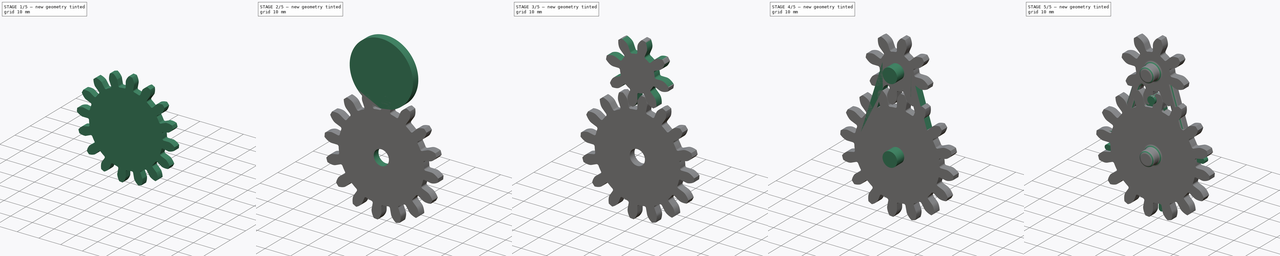
[diagram: build sequence overview — one tinted view per stage of 5, left to right]
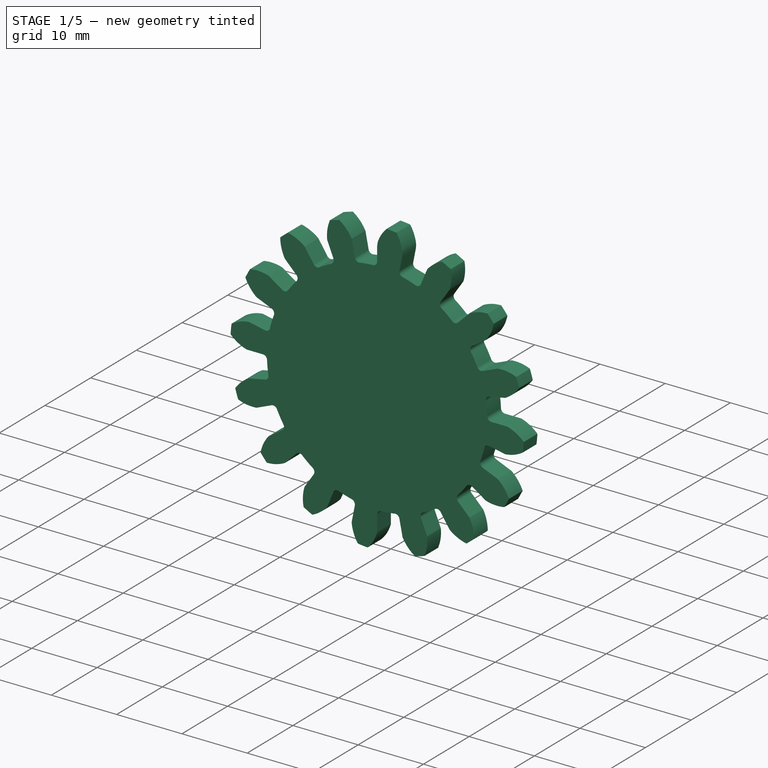
[diagram: stage 1 of 5 — iso view after this stage's code; geometry added in this stage tinted green]
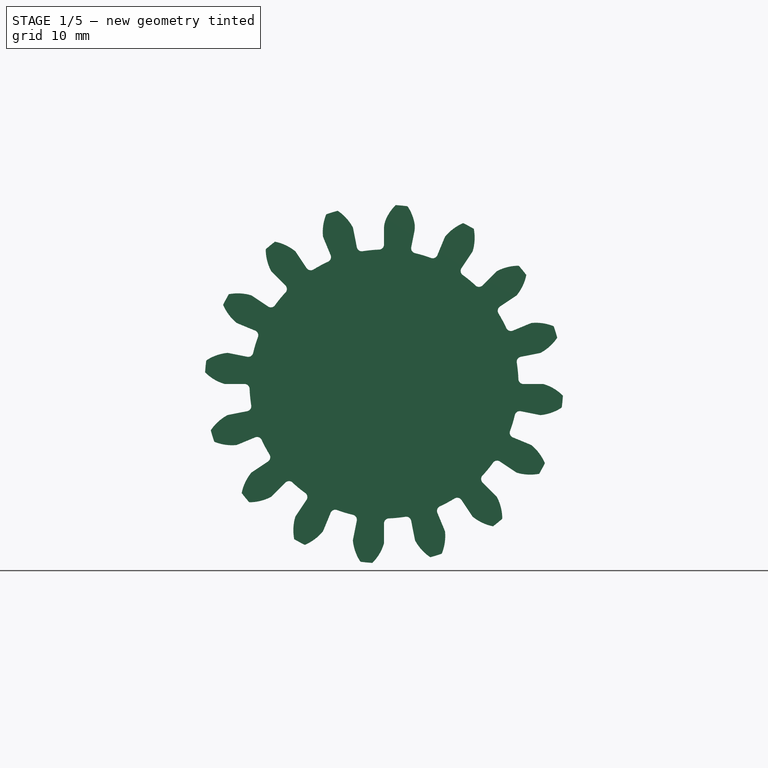
[diagram: stage 1 of 5 — front view after this stage's code; geometry added in this stage tinted green]
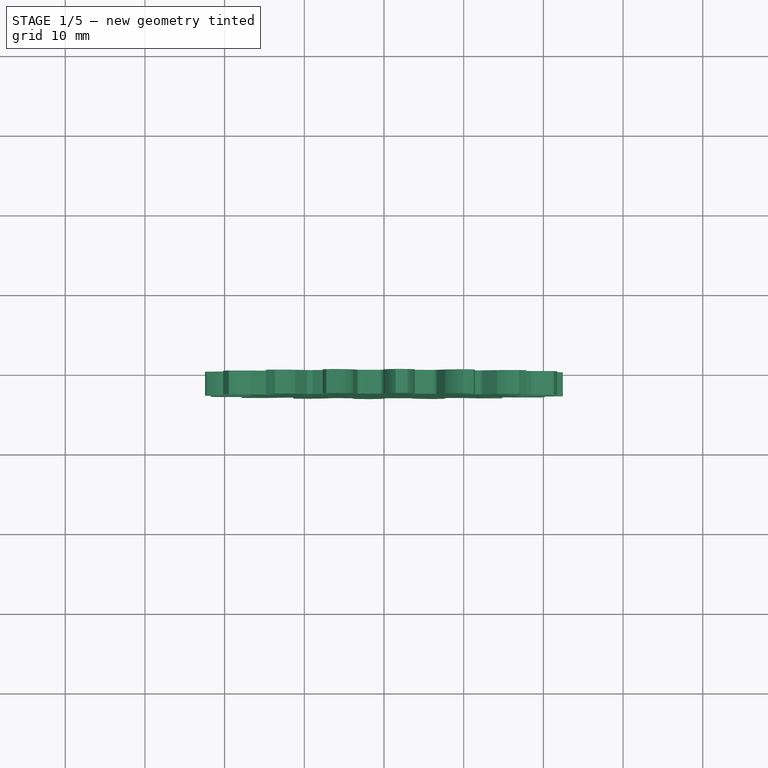
[diagram: stage 1 of 5 — top view after this stage's code; geometry added in this stage tinted green]
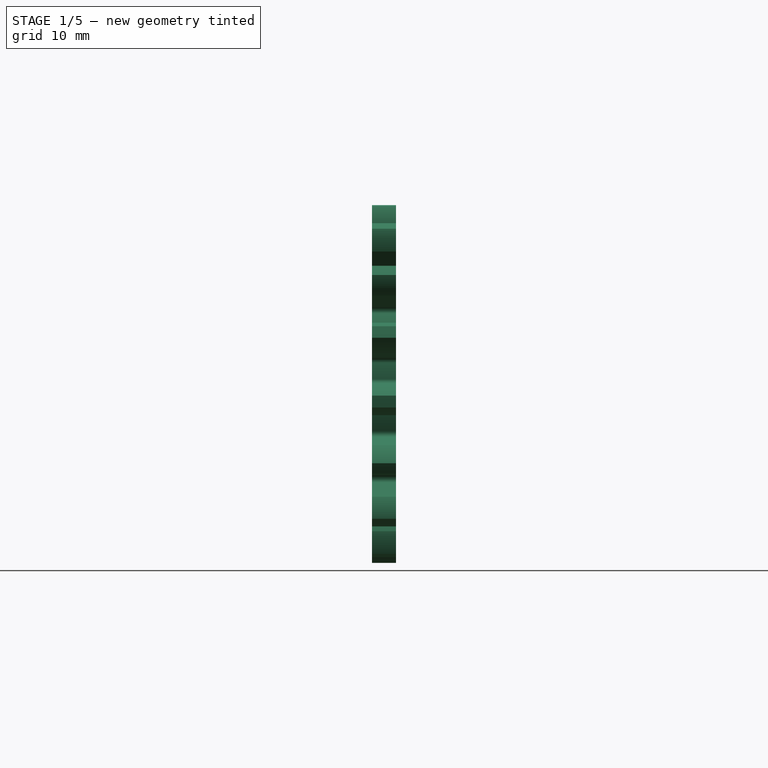
[diagram: stage 1 of 5 — right view after this stage's code; geometry added in this stage tinted green]
FCSTD DOCUMENT  (FreeCAD 1.0R39285 (Git))
Label: counter
License: All rights reserved
LicenseURL: https://en.wikipedia.org/wiki/All_rights_reserved
objects: TechDraw::DrawViewDimension×28, Sketcher::SketchObject×13, PartDesign::Pad×7, PartDesign::Pocket×6, PartDesign::Body×5, PartDesign::PolarPattern×4, PartDesign::Fillet×3, TechDraw::DrawProjGroupItem×2, TechDraw::DrawSVGTemplate×1, TechDraw::DrawViewAnnotation×1, TechDraw::DrawPage×1
note: 133 computed .brp shape members not serialized (recipe doc carries the construction recipe); baked Part::Feature solids carry a one-line shape summary decoded from their .brp

FEATURE [PartDesign::Body] Body  label="crank"
  AllowCompound = false
  Group = -> [Sketch,Pad,Sketch001,Pad003]
  Origin = -> Origin
  Tip = -> Pad003
FEATURE [Sketcher::SketchObject] Sketch003
  ArcFitTolerance = 1e-06
  AttachmentSupport = -> [XZ_Plane002]
  FullyConstrained = false
  MakeInternals = false
  MapMode = 5
  Placement = pos=(0,0,0) rot=(1,0,0;1.5708rad)
  sketch-geometry (39):
    g0: Circle [constr] CenterX=0 CenterY=0 CenterZ=0 NormalX=0 NormalY=0 NormalZ=1 AngleXU=0 Radius=20
    g1: Circle [constr] CenterX=0 CenterY=30 CenterZ=0 NormalX=0 NormalY=0 NormalZ=1 AngleXU=0 Radius=10
    g2: Circle [constr] CenterX=0 CenterY=0 CenterZ=0 NormalX=0 NormalY=0 NormalZ=1 AngleXU=0 Radius=16.875
    g3: Circle [constr] CenterX=0 CenterY=30 CenterZ=0 NormalX=0 NormalY=0 NormalZ=1 AngleXU=0 Radius=6.875
    g4: LineSegment [constr] StartX=0 StartY=0 StartZ=0 EndX=-20 EndY=0 EndZ=0
    g5: LineSegment [constr] StartX=-10 StartY=30 StartZ=0 EndX=10 EndY=30 EndZ=0
    g6: LineSegment [constr] StartX=20 StartY=0 StartZ=0 EndX=22.5 EndY=0 EndZ=0
    g7: Circle [constr] CenterX=0 CenterY=30 CenterZ=0 NormalX=0 NormalY=0 NormalZ=1 AngleXU=0 Radius=12.5
    g8: LineSegment [constr] StartX=10 StartY=30 StartZ=0 EndX=12.5 EndY=30 EndZ=0
    g9: LineSegment [constr] StartX=20 StartY=0 StartZ=0 EndX=16.875 EndY=0 EndZ=0
    g10: GeomPoint [constr] X=6.875 Y=30 Z=0
    g11: Circle [constr] CenterX=0 CenterY=0 CenterZ=0 NormalX=0 NormalY=0 NormalZ=1 AngleXU=0 Radius=22.5
    g12: LineSegment [constr] StartX=0 StartY=0 StartZ=0 EndX=4.39653 EndY=22.0663 EndZ=0
    g13: LineSegment [constr] StartX=0 StartY=30 StartZ=0 EndX=-4.8132 EndY=18.4638 EndZ=0
    g14: GeomPoint [constr] X=-3.85056 Y=20.7711 Z=0
    g15: GeomPoint [constr] X=0 Y=20 Z=0
    g16: GeomPoint [constr] X=3.90803 Y=19.6145 Z=0
    g17: LineSegment [constr] StartX=0 StartY=0 StartZ=0 EndX=1.6487 EndY=16.7124 EndZ=0
    g18: GeomPoint [constr] X=3.2974 Y=16.5497 Z=0
    g19: GeomPoint [constr] X=0 Y=16.875 Z=0
    g20: LineSegment [constr] StartX=0 StartY=30 StartZ=0 EndX=-1.32363 EndY=23.3901 EndZ=0
    g21: GeomPoint [constr] X=-2.64726 Y=23.6551 Z=0
    g22: GeomPoint [constr] X=0 Y=23.125 Z=0
    g23: ArcOfCircle CenterX=5.57114 CenterY=18.342 CenterZ=0 NormalX=0 NormalY=0 NormalZ=1 AngleXU=0 Radius=5.81262 StartAngle=2.35611 EndAngle=2.85234
    g24: ArcOfCircle CenterX=-1.87969 CenterY=19.0771 CenterZ=0 NormalX=0 NormalY=0 NormalZ=1 AngleXU=0 Radius=5.81262 StartAngle=0.0925878 EndAngle=0.588812
    g25: ArcOfCircle [constr] CenterX=-1.53252 CenterY=19.8039 CenterZ=0 NormalX=0 NormalY=0 NormalZ=1 AngleXU=0 Radius=2.51171 StartAngle=2.74632 EndAngle=3.99416
    g26: ArcOfCircle [constr] CenterX=-2.44477 CenterY=19.9518 CenterZ=0 NormalX=0 NormalY=0 NormalZ=1 AngleXU=0 Radius=2.44525 StartAngle=5.01564 EndAngle=6.30289
    g27: LineSegment StartX=0 StartY=20 StartZ=0 EndX=0 EndY=17.5 EndZ=0
    g28: LineSegment StartX=3.41953 StartY=17.1627 StartZ=0 EndX=3.90803 EndY=19.6145 EndZ=0
    g29: ArcOfCircle CenterX=-0.636574 CenterY=17.5 CenterZ=0 NormalX=0 NormalY=0 NormalZ=1 AngleXU=0 Radius=0.636574 StartAngle=4.74875 EndAngle=6.28319
    g30: ArcOfCircle CenterX=4.04383 CenterY=17.0383 CenterZ=0 NormalX=0 NormalY=0 NormalZ=1 AngleXU=0 Radius=0.636574 StartAngle=2.94493 EndAngle=4.47936
    g31: ArcOfCircle CenterX=1.01e-14 CenterY=-3.73e-14 CenterZ=0 NormalX=0 NormalY=0 NormalZ=1 AngleXU=0 Radius=22.5 StartAngle=1.43912 EndAngle=1.5058
    g32: ArcOfCircle CenterX=1.01e-14 CenterY=-3.73e-14 CenterZ=0 NormalX=0 NormalY=0 NormalZ=1 AngleXU=0 Radius=16.875 StartAngle=1.27592 EndAngle=1.33777
    g33: ArcOfCircle CenterX=1.01e-14 CenterY=-3.73e-14 CenterZ=0 NormalX=0 NormalY=0 NormalZ=1 AngleXU=0 Radius=16.875 StartAngle=1.60716 EndAngle=1.66901
    g34: LineSegment [constr] StartX=0 StartY=0 StartZ=0 EndX=5.81252 EndY=19.1367 EndZ=0
    g35: LineSegment [constr] StartX=0 StartY=0 StartZ=0 EndX=-1.96113 EndY=19.9036 EndZ=0
    g36: LineSegment StartX=4.90432 StartY=16.1466 StartZ=0 EndX=7.81058 EndY=25.715 EndZ=0
    g37: LineSegment StartX=-1.65471 StartY=16.7937 StartZ=0 EndX=-2.63527 EndY=26.7455 EndZ=0
    g38: ArcOfCircle CenterX=0 CenterY=0 CenterZ=0 NormalX=0 NormalY=0 NormalZ=1 AngleXU=0 Radius=26.875 StartAngle=1.27592 EndAngle=1.66901
  constraints (102):
    c: Coincident(g0,g-1)
    c: PointOnObject(g1,g-2)
    c: Coincident(g2,g0)
    c: Coincident(g3,g1)
    c: Coincident(g4,g0)
    c: Horizontal(g4)
    c: PointOnObject(g4,g0)
    c: PointOnObject(g5,g1)
    c: PointOnObject(g5,g1)
    c: Horizontal(g5)
    c: PointOnObject(g1,g5)
    c: Equal(g4,g5)
    c: Diameter(g0) = 40
    c: PointOnObject(g6,g0)
    c: Horizontal(g6)
    c: PointOnObject(g6,g-1)
    c: DistanceX(g6,g6) = 2.5
    c: Coincident(g7,g1)
    c: Coincident(g8,g5)
    c: PointOnObject(g8,g7)
    c: Horizontal(g8)
    c: DistanceX(g8,g8) = 2.5
    c: Coincident(g9,g6)
    c: PointOnObject(g9,g2)
    c: Horizontal(g9)
    c: DistanceX(g9,g9) = 3.125
    c: PointOnObject(g10,g5)
    c: PointOnObject(g10,g3)
    c: DistanceX(g10,g5) = 3.125
    c: Coincident(g11,g0)
    c: PointOnObject(g6,g11)
    c: Coincident(g12,g0)
    c: PointOnObject(g12,g11)
    c: Coincident(g13,g1)
    c: PointOnObject(g13,g7)
    c: PointOnObject(g14,g13)
    c: PointOnObject(g14,g1)
    c: PointOnObject(g15,g0)
    c: PointOnObject(g15,g1)
    c: Distance(g15,g14) = 3.927
    c: PointOnObject(g16,g0)
    c: PointOnObject(g16,g12)
    c: Distance(g16,g15) = 3.927
    c: Coincident(g17,g0)
    c: PointOnObject(g18,g2)
    c: PointOnObject(g18,g12)
    c: PointOnObject(g19,g-2)
    c: PointOnObject(g19,g2)
    c: Symmetric(g19,g18,g17)
    c: Coincident(g20,g1)
    c: PointOnObject(g21,g3)
    c: PointOnObject(g22,g3)
    c: PointOnObject(g21,g13)
    c: PointOnObject(g22,g-2)
    c: Symmetric(g21,g22,g20)
    c: Coincident(g23,g15)
    c: Coincident(g24,g16)
    c: PointOnObject(g24,g11)
    c: Distance(g23,g24) = 1.5
    c: Symmetric(g23,g24,g17)
    c: Equal(g23,g24)
    c: Coincident(g25,g14)
    c: PointOnObject(g25,g7)
    c: Tangent(g25,g13)
    c: Coincident(g26,g15)
    c: Distance(g26,g25) = 1.5
    c: Symmetric(g25,g26,g20)
    c: Coincident(g27,g15)
    c: Coincident(g28,g16)
    c: PointOnObject(g27,g7)
    c: PointOnObject(g27,g-2)
    c: PointOnObject(g28,g12)
    c: Tangent(g29,g2) = 1.5708
    c: Tangent(g29,g27) = 1.5708
    c: Tangent(g30,g28) = 1.5708
    c: Tangent(g30,g2) = 1.5708
    c: Equal(g30,g29)
    c: Coincident(g31,g23)
    c: Coincident(g31,g24)
    c: Coincident(g32,g31)
    c: Coincident(g32,g30)
    c: Coincident(g33,g31)
    c: Coincident(g33,g29)
    c: Coincident(g34,g0)
    c: PointOnObject(g34,g0)
    c: Coincident(g35,g0)
    c: PointOnObject(g35,g0)
    c: PointOnObject(g33,g35)
    c: PointOnObject(g33,g2)
    c: PointOnObject(g32,g34)
    c: Distance(g16,g34) = 1.9635
    c: Distance(g35,g15) = 1.9635
    c: Coincident(g36,g32)
    c: Coincident(g37,g33)
    c: Parallel(g37,g35)
    c: Parallel(g34,g36)
    c: Coincident(g38,g0)
    c: Coincident(g38,g37)
    c: Coincident(g38,g36)
    c: Distance(g36) = 10
    c: PointOnObject(g15,g-2)
    c: PointOnObject(g24,g37)
FEATURE [Sketcher::SketchObject] Sketch004
  ArcFitTolerance = 1e-06
  AttachmentSupport = -> [XZ_Plane002]
  FullyConstrained = true
  MakeInternals = false
  MapMode = 5
  Placement = pos=(0,0,0) rot=(1,0,0;1.5708rad)
  sketch-geometry (1):
    g0: Circle CenterX=0 CenterY=0 CenterZ=0 NormalX=0 NormalY=0 NormalZ=1 AngleXU=0 Radius=22.5
  constraints (2):
    c: Coincident(g0,g-1)
    c: Diameter(g0) = 45
FEATURE [PartDesign::Pad] Pad004
  Direction = (0,-1,2e-16)
  Length = 3
  Length2 = 10
  Placement = pos=(0,0,0) rot=(1,0,0;1.5708rad)
  Profile = -> Sketch004
  ReferenceAxis = -> Sketch004 [N_Axis]
  Refine = true
  Suppressed = false
  Type = 0
FEATURE [PartDesign::Pocket] Pocket
  BaseFeature = -> Pad004
  Direction = (0,1,-2e-16)
  Length = 5
  Length2 = 5
  Midplane = true
  Placement = pos=(0,0,0) rot=(1,0,0;1.5708rad)
  Profile = -> Sketch003
  ReferenceAxis = -> Sketch003 [N_Axis]
  Refine = true
  Suppressed = false
  Type = 1
FEATURE [PartDesign::PolarPattern] PolarPattern
  Angle = 360
  Axis = -> Y_Axis002
  BaseFeature = -> Pocket
  Mode = 0
  Occurrences = 16
  Offset = 120
  Originals = -> [Pocket]
  Placement = pos=(0,0,0) rot=(1,0,0;1.5708rad)
  Refine = true
  Suppressed = false
  TransformMode = 0
FEATURE [Sketcher::SketchObject] Sketch008
  ArcFitTolerance = 1e-06
  AttachmentSupport = -> [PolarPattern]
  ExternalGeometry = -> [PolarPattern]
  FullyConstrained = true
  MakeInternals = false
  MapMode = 5
  Placement = pos=(0,-3,0) rot=(1,0,0;1.5708rad)
  sketch-geometry (6):
    g0: ArcOfCircle CenterX=3 CenterY=19.4822 CenterZ=0 NormalX=0 NormalY=0 NormalZ=1 AngleXU=0 Radius=3 StartAngle=2.72419 EndAngle=3.14159
    g1: ArcOfCircle CenterX=0.864684 CenterY=19.6929 CenterZ=0 NormalX=0 NormalY=0 NormalZ=1 AngleXU=0 Radius=3 StartAngle=6.08652 EndAngle=6.50392
    g2: LineSegment StartX=3.79189 StartY=20.3497 StartZ=0 EndX=4.58268 EndY=19.7376 EndZ=0
    g3: LineSegment StartX=3.80685 StartY=19.1067 StartZ=0 EndX=4.58268 EndY=19.7376 EndZ=0
    g4: LineSegment StartX=0.257563 StartY=20.6984 StartZ=0 EndX=-0.637583 EndY=20.2526 EndZ=0
    g5: LineSegment StartX=7e-16 StartY=19.4822 StartZ=0 EndX=-0.637583 EndY=20.2526 EndZ=0
  constraints (16):
    c: Tangent(g0,g-3) = -1.5708
    c: Tangent(g0,g-5) = 1.5708
    c: Tangent(g1,g-4) = -1.5708
    c: Tangent(g1,g-6) = 1.5708
    c: Diameter(g1) = 6
    c: Equal(g0,g1)
    c: Coincident(g2,g1)
    c: Coincident(g3,g1)
    c: Coincident(g3,g2)
    c: Coincident(g4,g0)
    c: Coincident(g5,g0)
    c: Coincident(g5,g4)
    c: Equal(g5,g4)
    c: Equal(g4,g2)
    c: Equal(g2,g3)
    c: Distance(g2) = 1
FEATURE [PartDesign::Pocket] Pocket003
  BaseFeature = -> PolarPattern
  Direction = (0,1,-2e-16)
  Length = 5
  Length2 = 5
  Midplane = true
  Placement = pos=(0,0,0) rot=(1,0,0;1.5708rad)
  Profile = -> Sketch008
  ReferenceAxis = -> Sketch008 [N_Axis]
  Refine = true
  Suppressed = false
  Type = 1
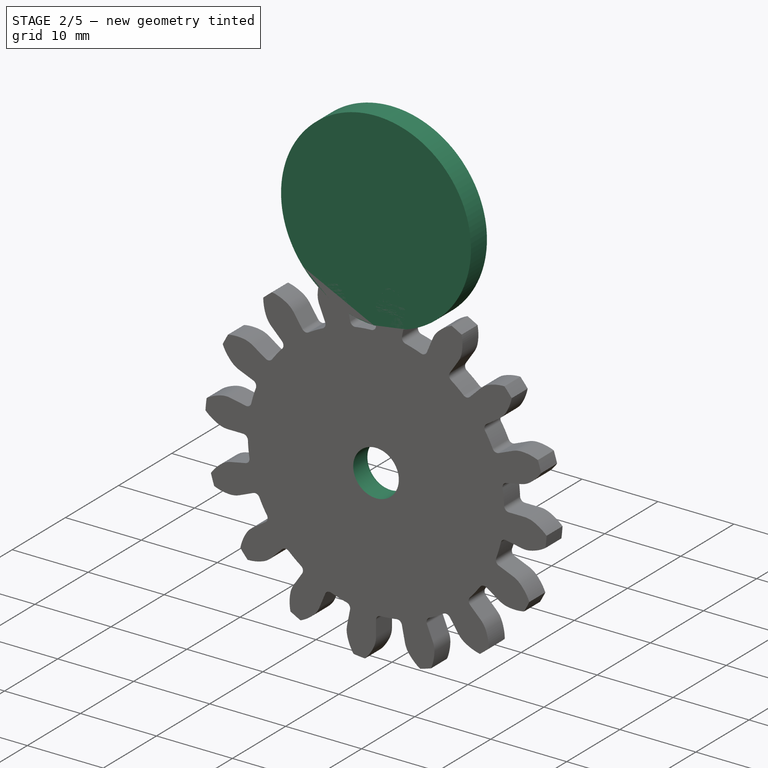
[diagram: stage 2 of 5 — iso view after this stage's code; geometry added in this stage tinted green]
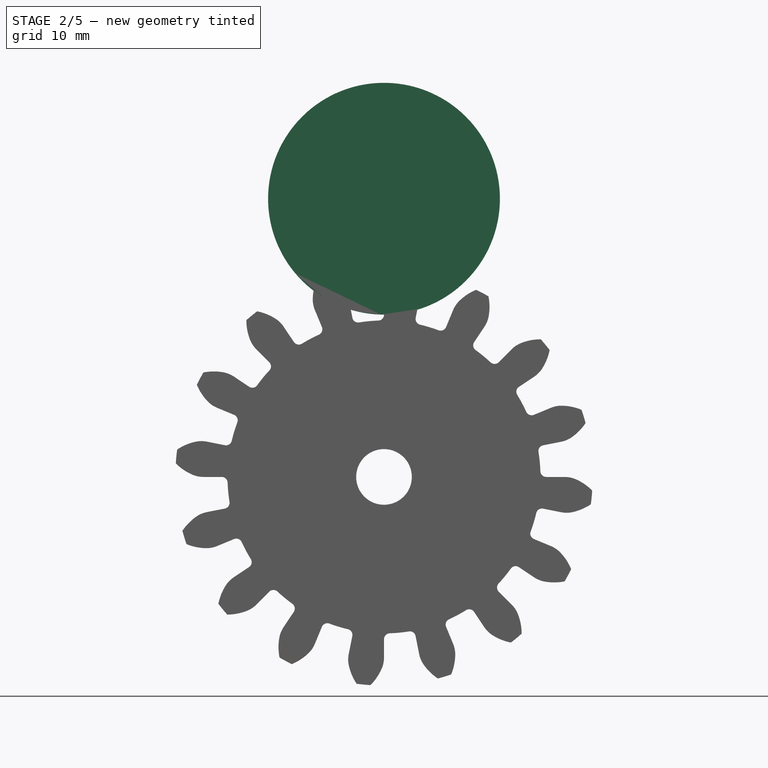
[diagram: stage 2 of 5 — front view after this stage's code; geometry added in this stage tinted green]
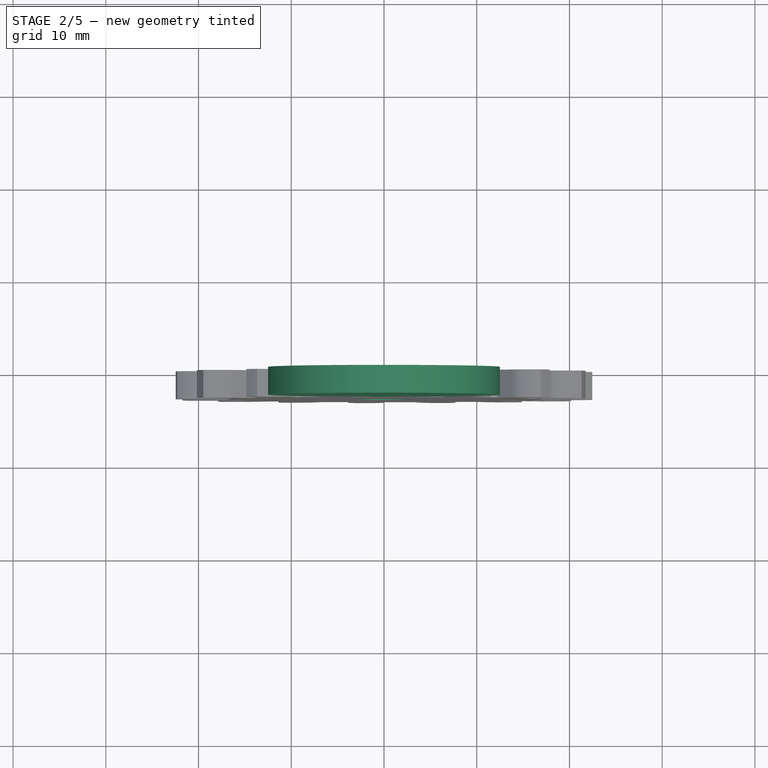
[diagram: stage 2 of 5 — top view after this stage's code; geometry added in this stage tinted green]
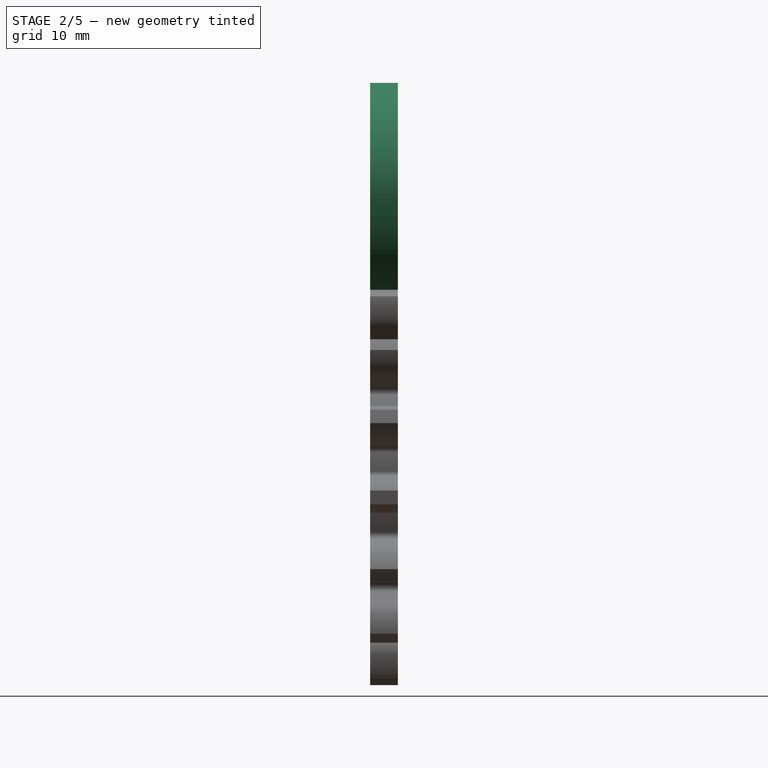
[diagram: stage 2 of 5 — right view after this stage's code; geometry added in this stage tinted green]
FEATURE [Sketcher::SketchObject] Sketch005
  ArcFitTolerance = 1e-06
  AttachmentSupport = -> [XZ_Plane003]
  FullyConstrained = false
  MakeInternals = false
  MapMode = 5
  Placement = pos=(0,0,0) rot=(1,0,0;1.5708rad)
  sketch-geometry (44):
    g0: Circle [constr] CenterX=0 CenterY=0 CenterZ=0 NormalX=0 NormalY=0 NormalZ=1 AngleXU=0 Radius=20
    g1: Circle [constr] CenterX=0 CenterY=30 CenterZ=0 NormalX=0 NormalY=0 NormalZ=1 AngleXU=0 Radius=10
    g2: Circle [constr] CenterX=0 CenterY=0 CenterZ=0 NormalX=0 NormalY=0 NormalZ=1 AngleXU=0 Radius=16.875
    g3: Circle [constr] CenterX=0 CenterY=30 CenterZ=0 NormalX=0 NormalY=0 NormalZ=1 AngleXU=0 Radius=6.875
    g4: LineSegment [constr] StartX=0 StartY=0 StartZ=0 EndX=-20 EndY=0 EndZ=0
    g5: LineSegment [constr] StartX=-10 StartY=30 StartZ=0 EndX=10 EndY=30 EndZ=0
    g6: LineSegment [constr] StartX=20 StartY=0 StartZ=0 EndX=22.5 EndY=0 EndZ=0
    g7: Circle [constr] CenterX=0 CenterY=30 CenterZ=0 NormalX=0 NormalY=0 NormalZ=1 AngleXU=0 Radius=12.5
    g8: LineSegment [constr] StartX=10 StartY=30 StartZ=0 EndX=12.5 EndY=30 EndZ=0
    g9: LineSegment [constr] StartX=20 StartY=0 StartZ=0 EndX=16.875 EndY=0 EndZ=0
    g10: GeomPoint [constr] X=6.875 Y=30 Z=0
    g11: Circle [constr] CenterX=0 CenterY=0 CenterZ=0 NormalX=0 NormalY=0 NormalZ=1 AngleXU=0 Radius=22.5
    g12: LineSegment [constr] StartX=0 StartY=0 StartZ=0 EndX=4.39653 EndY=22.0663 EndZ=0
    g13: LineSegment [constr] StartX=0 StartY=30 StartZ=0 EndX=-4.86767 EndY=18.4867 EndZ=0
    g14: GeomPoint [constr] X=-3.89413 Y=20.7894 Z=0
    g15: GeomPoint [constr] X=0 Y=20 Z=0
    g16: GeomPoint [constr] X=3.90803 Y=19.6145 Z=0
    g17: LineSegment [constr] StartX=0 StartY=0 StartZ=0 EndX=1.6487 EndY=16.7124 EndZ=0
    g18: GeomPoint [constr] X=3.2974 Y=16.5497 Z=0
    g19: GeomPoint [constr] X=0 Y=16.875 Z=0
    g20: LineSegment [constr] StartX=0 StartY=30 StartZ=0 EndX=-1.33861 EndY=23.3963 EndZ=0
    g21: GeomPoint [constr] X=-2.67722 Y=23.6677 Z=0
    g22: GeomPoint [constr] X=0 Y=23.125 Z=0
    g23: ArcOfCircle [constr] CenterX=3.30349 CenterY=19.6932 CenterZ=0 NormalX=0 NormalY=0 NormalZ=1 AngleXU=0 Radius=3.3177 StartAngle=2.15946 EndAngle=3.04899
    g24: ArcOfCircle [constr] CenterX=0.608275 CenterY=19.9591 CenterZ=0 NormalX=0 NormalY=0 NormalZ=1 AngleXU=0 Radius=3.3177 StartAngle=6.17912 EndAngle=7.06865
    g25: ArcOfCircle CenterX=1.865 CenterY=20.6396 CenterZ=0 NormalX=0 NormalY=0 NormalZ=1 AngleXU=0 Radius=5.76108 StartAngle=3.11559 EndAngle=3.63317
    g26: ArcOfCircle CenterX=-5.36286 CenterY=22.1047 CenterZ=0 NormalX=0 NormalY=0 NormalZ=1 AngleXU=0 Radius=5.76108 StartAngle=5.39161 EndAngle=5.9092
    g27: LineSegment [constr] StartX=0 StartY=20 StartZ=0 EndX=0 EndY=16.875 EndZ=0
    g28: LineSegment [constr] StartX=3.2974 StartY=16.5497 StartZ=0 EndX=3.90803 EndY=19.6145 EndZ=0
    g29: LineSegment [constr] StartX=0 StartY=0 StartZ=0 EndX=5.81252 EndY=19.1367 EndZ=0
    g30: LineSegment [constr] StartX=0 StartY=0 StartZ=0 EndX=-1.96113 EndY=19.9036 EndZ=0
    g31: LineSegment StartX=-3.89413 StartY=20.7894 StartZ=0 EndX=-2.9206 EndY=23.092 EndZ=0
    g32: LineSegment StartX=0 StartY=20 StartZ=0 EndX=0 EndY=22.5 EndZ=0
    g33: ArcOfCircle CenterX=-3.52243 CenterY=23.3465 CenterZ=0 NormalX=0 NormalY=0 NormalZ=1 AngleXU=0 Radius=0.653409 StartAngle=5.88319 EndAngle=7.36709
    g34: ArcOfCircle CenterX=0.653409 CenterY=22.5 CenterZ=0 NormalX=0 NormalY=0 NormalZ=1 AngleXU=0 Radius=0.653409 StartAngle=1.6577 EndAngle=3.14159
    g35: ArcOfCircle CenterX=-9.1e-15 CenterY=30 CenterZ=0 NormalX=0 NormalY=0 NormalZ=1 AngleXU=0 Radius=12.5 StartAngle=4.45236 EndAngle=4.57243
    g36: ArcOfCircle CenterX=-9.1e-15 CenterY=30 CenterZ=0 NormalX=0 NormalY=0 NormalZ=1 AngleXU=0 Radius=6.875 StartAngle=4.11573 EndAngle=4.22549
    g37: ArcOfCircle CenterX=-9.1e-15 CenterY=30 CenterZ=0 NormalX=0 NormalY=0 NormalZ=1 AngleXU=0 Radius=6.875 StartAngle=4.79929 EndAngle=4.90906
    g38: LineSegment [constr] StartX=0 StartY=30 StartZ=0 EndX=6.6204 EndY=22.5053 EndZ=0
    g39: LineSegment [constr] StartX=-5.61884 StartY=21.7278 StartZ=0 EndX=0 EndY=30 EndZ=0
    g40: LineSegment [constr] StartX=0 StartY=30 StartZ=0 EndX=1.95401 EndY=20.1928 EndZ=0
    g41: LineSegment StartX=-3.86295 StartY=24.3129 StartZ=0 EndX=-9.48179 EndY=16.0407 EndZ=0
    g42: LineSegment StartX=1.34339 StartY=23.2575 StartZ=0 EndX=3.2974 EndY=13.4503 EndZ=0
    g43: ArcOfCircle CenterX=0 CenterY=30 CenterZ=0 NormalX=0 NormalY=0 NormalZ=1 AngleXU=0 Radius=16.875 StartAngle=4.11573 EndAngle=4.90906
  constraints (114):
    c: Coincident(g0,g-1)
    c: PointOnObject(g1,g-2)
    c: Coincident(g2,g0)
    c: Coincident(g3,g1)
    c: Coincident(g4,g0)
    c: Horizontal(g4)
    c: PointOnObject(g4,g0)
    c: PointOnObject(g5,g1)
    c: PointOnObject(g5,g1)
    c: Horizontal(g5)
    c: PointOnObject(g1,g5)
    c: Equal(g4,g5)
    c: Diameter(g0) = 40
    c: PointOnObject(g6,g0)
    c: Horizontal(g6)
    c: PointOnObject(g6,g-1)
    c: DistanceX(g6,g6) = 2.5
    c: Coincident(g7,g1)
    c: Coincident(g8,g5)
    c: PointOnObject(g8,g7)
    c: Horizontal(g8)
    c: DistanceX(g8,g8) = 2.5
    c: Coincident(g9,g6)
    c: PointOnObject(g9,g2)
    c: Horizontal(g9)
    c: DistanceX(g9,g9) = 3.125
    c: PointOnObject(g10,g5)
    c: PointOnObject(g10,g3)
    c: DistanceX(g10,g5) = 3.125
    c: Coincident(g11,g0)
    c: PointOnObject(g6,g11)
    c: Coincident(g12,g0)
    c: PointOnObject(g12,g11)
    c: Coincident(g13,g1)
    c: PointOnObject(g13,g7)
    c: PointOnObject(g14,g13)
    c: PointOnObject(g14,g1)
    c: PointOnObject(g15,g0)
    c: PointOnObject(g15,g1)
    c: PointOnObject(g16,g0)
    c: PointOnObject(g16,g12)
    c: Distance(g16,g15) = 3.927
    c: Coincident(g17,g0)
    c: PointOnObject(g18,g2)
    c: PointOnObject(g18,g12)
    c: PointOnObject(g19,g-2)
    c: PointOnObject(g19,g2)
    c: Symmetric(g19,g18,g17)
    c: Coincident(g20,g1)
    c: PointOnObject(g21,g3)
    c: PointOnObject(g22,g3)
    c: PointOnObject(g21,g13)
    c: PointOnObject(g22,g-2)
    c: Symmetric(g21,g22,g20)
    c: Coincident(g23,g15)
    c: Coincident(g24,g16)
    c: PointOnObject(g24,g11)
    c: Distance(g23,g24) = 1.5
    c: Symmetric(g23,g24,g17)
    c: Equal(g23,g24)
    c: Coincident(g25,g14)
    c: PointOnObject(g25,g7)
    c: Coincident(g26,g15)
    c: Distance(g26,g25) = 1.5
    c: Symmetric(g25,g26,g20)
    c: Coincident(g27,g15)
    c: Coincident(g28,g16)
    c: Coincident(g29,g0)
    c: PointOnObject(g29,g0)
    c: Coincident(g30,g0)
    c: PointOnObject(g30,g0)
    c: Distance(g16,g29) = 1.9635
    c: Distance(g30,g15) = 1.9635
    c: Coincident(g27,g19)
    c: Coincident(g28,g18)
    c: Coincident(g31,g14)
    c: PointOnObject(g31,g13)
    c: Vertical(g32)
    c: Tangent(g33,g3) = 1.5708
    c: Tangent(g34,g3) = 1.5708
    c: Tangent(g33,g31) = -1.5708
    c: Tangent(g34,g32) = 1.5708
    c: PointOnObject(g32,g11)
    c: Equal(g33,g34)
    c: Coincident(g32,g15)
    c: Coincident(g35,g25)
    c: Coincident(g35,g26)
    c: Coincident(g36,g35)
    c: Coincident(g37,g35)
    c: Coincident(g36,g33)
    c: Coincident(g37,g34)
    c: Coincident(g38,g1)
    c: PointOnObject(g38,g1)
    c: PointOnObject(g39,g1)
    c: Coincident(g39,g1)
    c: Distance(g14,g39) = 1.9635
    c: PointOnObject(g36,g39)
    c: PointOnObject(g36,g3)
    c: Coincident(g40,g1)
    c: PointOnObject(g40,g1)
    c: Distance(g40,g15) = 1.9635
    c: PointOnObject(g37,g40)
    c: Coincident(g41,g36)
    c: Parallel(g41,g39)
    c: Coincident(g42,g37)
    c: Parallel(g42,g40)
    c: Coincident(g43,g1)
    c: Coincident(g43,g41)
    c: Coincident(g43,g42)
    c: Distance(g42) = 10
    c: Angle(g13,g-2) = 0.399995
    c: PointOnObject(g15,g-2)
    c: PointOnObject(g25,g42)
    c: Equal(g26,g25)
FEATURE [Sketcher::SketchObject] Sketch006
  ArcFitTolerance = 1e-06
  AttachmentSupport = -> [XZ_Plane003]
  FullyConstrained = true
  MakeInternals = false
  MapMode = 5
  Placement = pos=(0,0,0) rot=(1,0,0;1.5708rad)
  sketch-geometry (1):
    g0: Circle CenterX=0 CenterY=30 CenterZ=0 NormalX=0 NormalY=0 NormalZ=1 AngleXU=0 Radius=12.5
  constraints (3):
    c: DistanceY(g-1,g0) = 30
    c: PointOnObject(g0,g-2)
    c: Diameter(g0) = 25
FEATURE [PartDesign::Pad] Pad005
  Direction = (0,-1,2e-16)
  Length = 3
  Length2 = 10
  Placement = pos=(0,0,0) rot=(1,0,0;1.5708rad)
  Profile = -> Sketch006
  ReferenceAxis = -> Sketch006 [N_Axis]
  Refine = true
  Suppressed = false
  Type = 0
FEATURE [PartDesign::PolarPattern] PolarPattern003
  Angle = 360
  Axis = -> Y_Axis002
  BaseFeature = -> Pocket003
  Mode = 0
  Occurrences = 16
  Offset = 120
  Originals = -> [Pocket003]
  Placement = pos=(0,0,0) rot=(1,0,0;1.5708rad)
  Refine = true
  Suppressed = false
  TransformMode = 0
FEATURE [Sketcher::SketchObject] Sketch010
  ArcFitTolerance = 1e-06
  AttachmentSupport = -> [PolarPattern003]
  FullyConstrained = true
  MakeInternals = false
  MapMode = 5
  Placement = pos=(0,-3,0) rot=(1,0,0;1.5708rad)
  sketch-geometry (1):
    g0: Circle CenterX=0 CenterY=0 CenterZ=0 NormalX=0 NormalY=0 NormalZ=1 AngleXU=0 Radius=3
  constraints (2):
    c: Coincident(g0,g-1)
    c: Diameter(g0) = 6
FEATURE [PartDesign::Pocket] Pocket005
  BaseFeature = -> PolarPattern003
  Direction = (0,1,-2e-16)
  Length = 5
  Length2 = 5
  Midplane = true
  Placement = pos=(0,0,0) rot=(1,0,0;1.5708rad)
  Profile = -> Sketch010
  ReferenceAxis = -> Sketch010 [N_Axis]
  Refine = true
  Suppressed = false
  Type = 1
FEATURE [PartDesign::Body] Body004  label="test_body"
  AllowCompound = false
  Group = -> [Sketch011,Pad006,Sketch012,Pad007,Fillet]
  Origin = -> Origin004
  Tip = -> Fillet
FEATURE [PartDesign::Fillet] Fillet001
  Base = -> Pocket005 [Edge193]
  BaseFeature = -> Pocket005
  Placement = pos=(0,0,0) rot=(1,0,0;1.5708rad)
  Radius = 0.5
  Refine = true
  SupportTransform = false
  Suppressed = false
  UseAllEdges = false
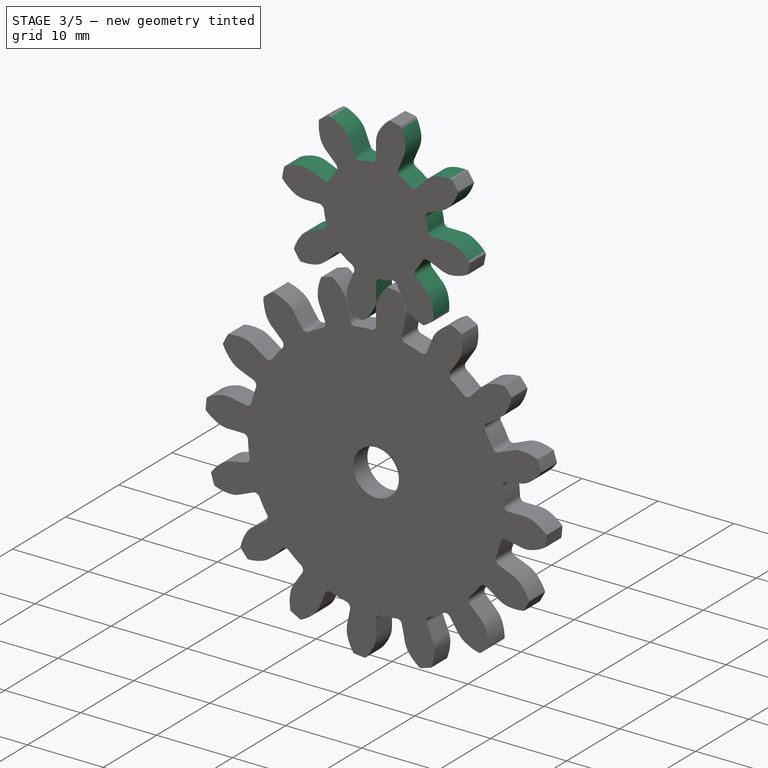
[diagram: stage 3 of 5 — iso view after this stage's code; geometry added in this stage tinted green]
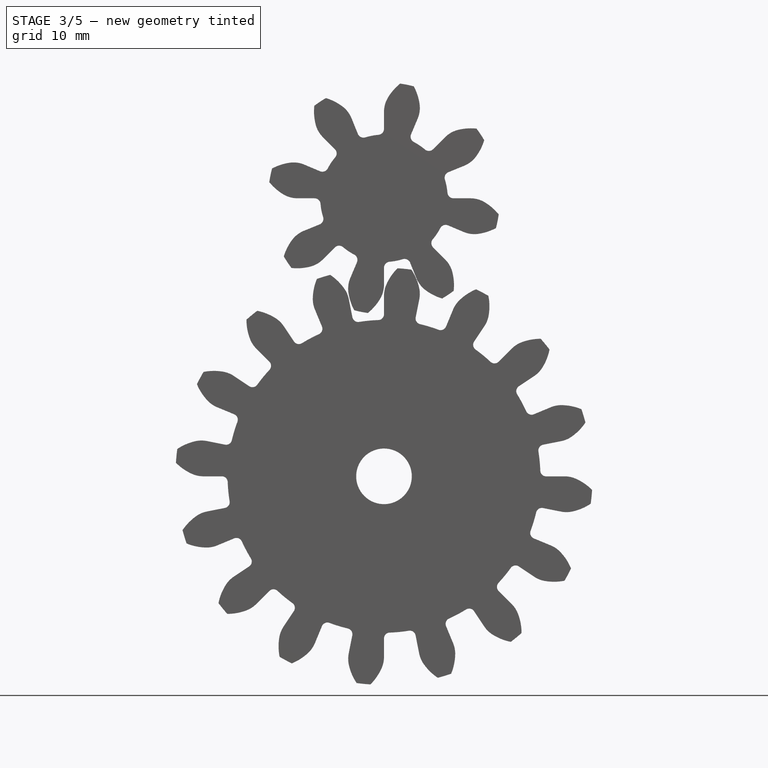
[diagram: stage 3 of 5 — front view after this stage's code; geometry added in this stage tinted green]
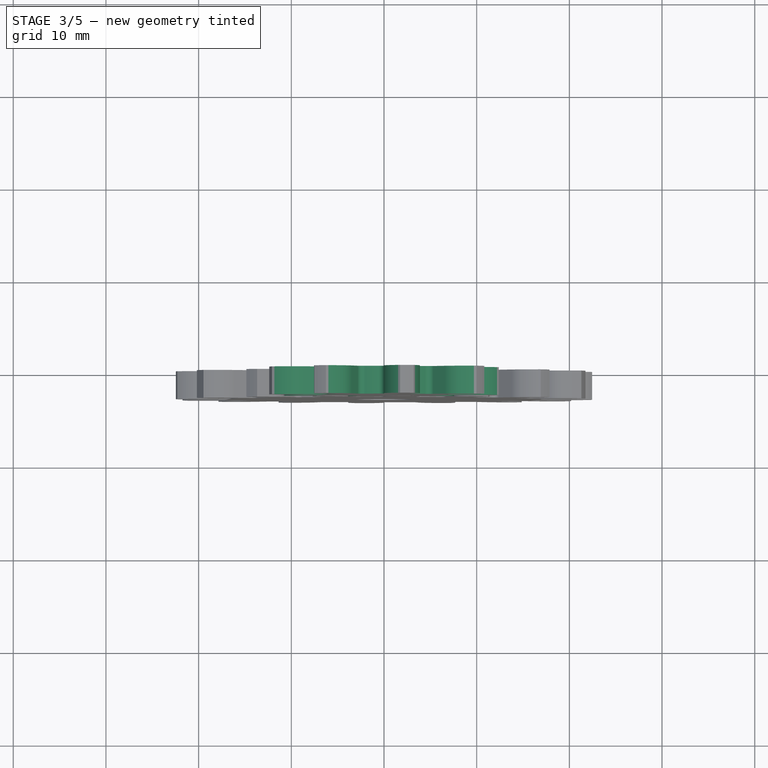
[diagram: stage 3 of 5 — top view after this stage's code; geometry added in this stage tinted green]
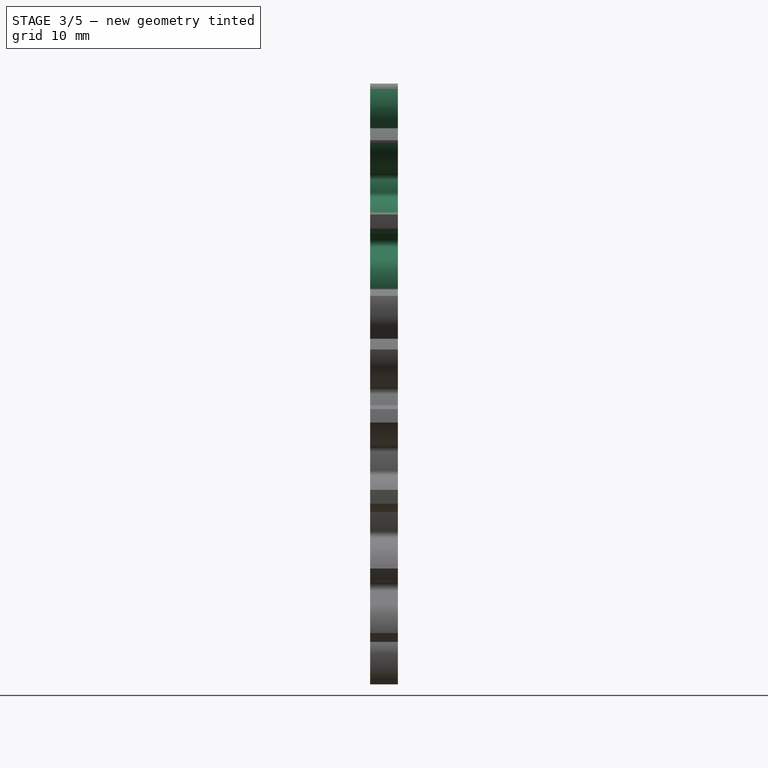
[diagram: stage 3 of 5 — right view after this stage's code; geometry added in this stage tinted green]
FEATURE [PartDesign::Pocket] Pocket001
  BaseFeature = -> Pad005
  Direction = (0,1,-2e-16)
  Length = 5
  Length2 = 5
  Midplane = true
  Placement = pos=(0,0,0) rot=(1,0,0;1.5708rad)
  Profile = -> Sketch005
  ReferenceAxis = -> Sketch005 [N_Axis]
  Refine = true
  Suppressed = false
  Type = 1
FEATURE [PartDesign::PolarPattern] PolarPattern001
  Angle = 360
  Axis = -> Pocket001 [Edge24]
  BaseFeature = -> Pocket001
  Mode = 0
  Occurrences = 8
  Offset = 120
  Originals = -> [Pocket001]
  Placement = pos=(0,0,0) rot=(1,0,0;1.5708rad)
  Refine = true
  Suppressed = false
  TransformMode = 0
FEATURE [Sketcher::SketchObject] Sketch007
  ArcFitTolerance = 1e-06
  AttachmentSupport = -> [PolarPattern001]
  ExternalGeometry = -> [PolarPattern001]
  FullyConstrained = true
  MakeInternals = false
  MapMode = 5
  Placement = pos=(0,-3,0) rot=(1,0,0;1.5708rad)
  sketch-geometry (6):
    g0: ArcOfCircle CenterX=-0.867601 CenterY=20.244 CenterZ=0 NormalX=0 NormalY=0 NormalZ=1 AngleXU=0 Radius=3 StartAngle=2.7416 EndAngle=3.28535
    g1: ArcOfCircle CenterX=-3 CenterY=20.6763 CenterZ=0 NormalX=0 NormalY=0 NormalZ=1 AngleXU=0 Radius=3 StartAngle=5.73944 EndAngle=6.28319
    g2: LineSegment StartX=-3.83666 StartY=19.8142 StartZ=0 EndX=-4.32131 EndY=20.6889 EndZ=0
    g3: LineSegment StartX=-3.63079 StartY=21.4122 StartZ=0 EndX=-4.32131 EndY=20.6889 EndZ=0
    g4: LineSegment StartX=0 StartY=20.6763 StartZ=0 EndX=0.354341 EndY=19.7411 EndZ=0
    g5: LineSegment StartX=-0.432676 StartY=19.1242 StartZ=0 EndX=0.354341 EndY=19.7411 EndZ=0
  constraints (16):
    c: Tangent(g0,g-3) = -1.5708
    c: Tangent(g0,g-5) = -1.5708
    c: Tangent(g1,g-6) = 1.5708
    c: Tangent(g1,g-4) = -1.5708
    c: Diameter(g0) = 6
    c: Equal(g1,g0)
    c: Coincident(g2,g0)
    c: Coincident(g3,g0)
    c: Coincident(g3,g2)
    c: Coincident(g4,g1)
    c: Coincident(g5,g1)
    c: Coincident(g5,g4)
    c: Equal(g5,g2)
    c: Equal(g2,g3)
    c: Equal(g3,g4)
    c: Distance(g4) = 1
FEATURE [PartDesign::Pocket] Pocket002
  BaseFeature = -> PolarPattern001
  Direction = (0,1,-2e-16)
  Length = 5
  Length2 = 5
  Midplane = true
  Placement = pos=(0,0,0) rot=(1,0,0;1.5708rad)
  Profile = -> Sketch007
  ReferenceAxis = -> Sketch007 [N_Axis]
  Refine = true
  Suppressed = false
  Type = 1
FEATURE [PartDesign::PolarPattern] PolarPattern002
  Angle = 360
  Axis = -> Pocket002 [Edge203]
  BaseFeature = -> Pocket002
  Mode = 0
  Occurrences = 8
  Offset = 120
  Originals = -> [Pocket002]
  Placement = pos=(0,0,0) rot=(1,0,0;1.5708rad)
  Refine = true
  Suppressed = false
  TransformMode = 0
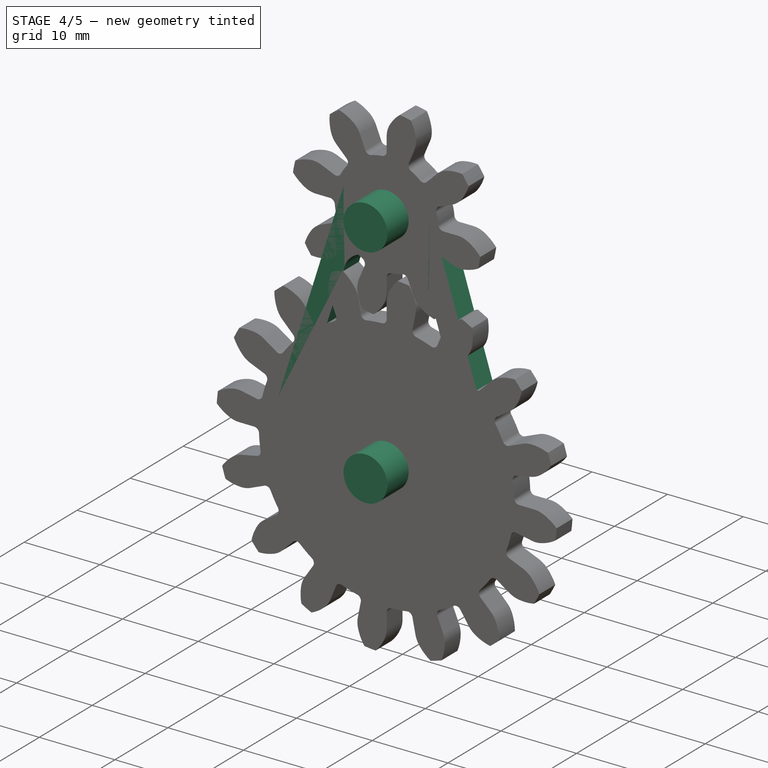
[diagram: stage 4 of 5 — iso view after this stage's code; geometry added in this stage tinted green]
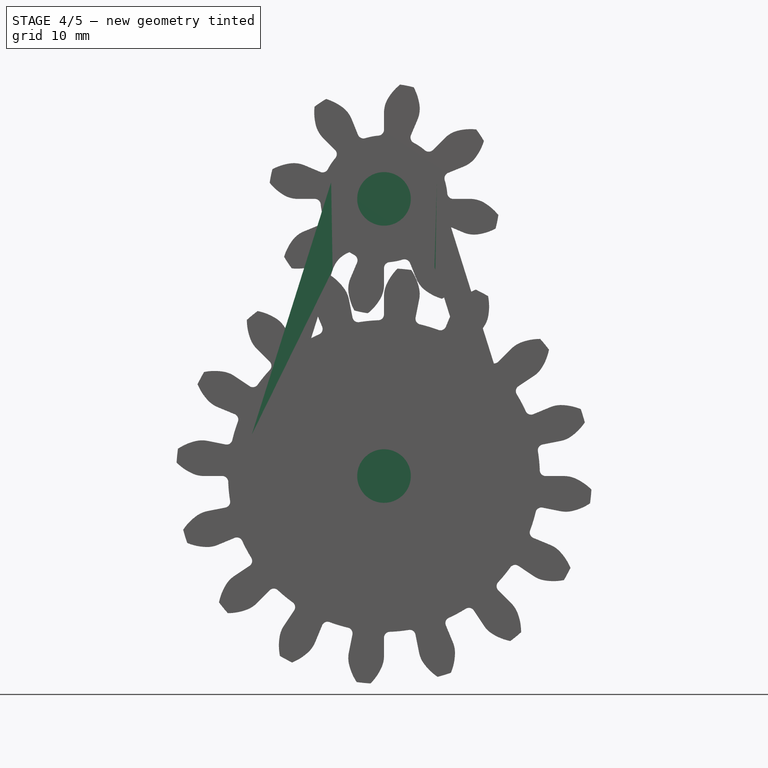
[diagram: stage 4 of 5 — front view after this stage's code; geometry added in this stage tinted green]
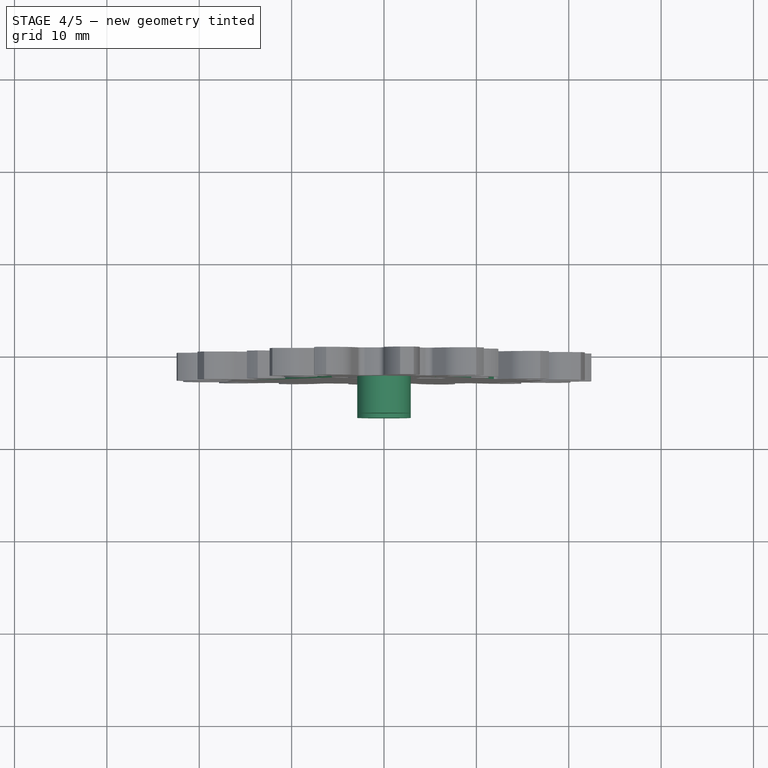
[diagram: stage 4 of 5 — top view after this stage's code; geometry added in this stage tinted green]
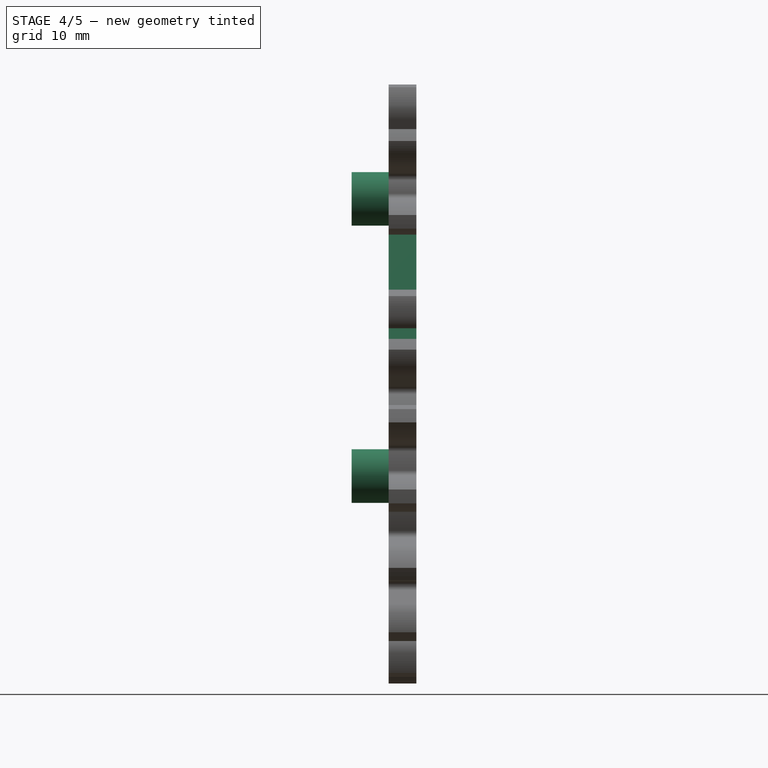
[diagram: stage 4 of 5 — right view after this stage's code; geometry added in this stage tinted green]
FEATURE [Sketcher::SketchObject] Sketch009
  ArcFitTolerance = 1e-06
  AttachmentSupport = -> [PolarPattern002]
  FullyConstrained = true
  MakeInternals = false
  MapMode = 5
  Placement = pos=(0,-3,0) rot=(1,0,0;1.5708rad)
  sketch-geometry (1):
    g0: Circle CenterX=0 CenterY=30 CenterZ=0 NormalX=0 NormalY=0 NormalZ=1 AngleXU=0 Radius=3
  constraints (3):
    c: PointOnObject(g0,g-2)
    c: DistanceY(g-1,g0) = 30
    c: Diameter(g0) = 6
FEATURE [PartDesign::Pocket] Pocket004
  BaseFeature = -> PolarPattern002
  Direction = (0,1,-2e-16)
  Length = 5
  Length2 = 5
  Midplane = true
  Placement = pos=(0,0,0) rot=(1,0,0;1.5708rad)
  Profile = -> Sketch009
  ReferenceAxis = -> Sketch009 [N_Axis]
  Refine = true
  Suppressed = false
  Type = 1
FEATURE [Sketcher::SketchObject] Sketch011
  ArcFitTolerance = 1e-06
  AttachmentSupport = -> [XZ_Plane004]
  FullyConstrained = true
  MakeInternals = false
  MapMode = 5
  Placement = pos=(0,0,0) rot=(1,0,0;1.5708rad)
  sketch-geometry (21):
    g0: ArcOfCircle CenterX=0 CenterY=30 CenterZ=0 NormalX=0 NormalY=0 NormalZ=1 AngleXU=0 Radius=6 StartAngle=0.304693 EndAngle=2.8369
    g1: ArcOfCircle CenterX=0 CenterY=0 CenterZ=0 NormalX=0 NormalY=0 NormalZ=1 AngleXU=0 Radius=15 StartAngle=2.8369 EndAngle=6.58788
    g2: LineSegment StartX=-14.3091 StartY=4.5 StartZ=0 EndX=-5.72364 EndY=31.8 EndZ=0
    g3: LineSegment StartX=5.72364 StartY=31.8 StartZ=0 EndX=14.3091 EndY=4.5 EndZ=0
    g4: ArcOfCircle CenterX=-8.58545 CenterY=2.7 CenterZ=0 NormalX=0 NormalY=0 NormalZ=1 AngleXU=0 Radius=3 StartAngle=2.8369 EndAngle=5.97849
    g5: ArcOfCircle CenterX=8.58545 CenterY=2.7 CenterZ=0 NormalX=0 NormalY=0 NormalZ=1 AngleXU=0 Radius=3 StartAngle=3.44629 EndAngle=6.58788
    g6: ArcOfCircle CenterX=-2.7 CenterY=21.4145 CenterZ=0 NormalX=0 NormalY=0 NormalZ=1 AngleXU=0 Radius=3 StartAngle=1.2661 EndAngle=2.8369
    g7: ArcOfCircle CenterX=2.7 CenterY=21.4145 CenterZ=0 NormalX=0 NormalY=0 NormalZ=1 AngleXU=0 Radius=3 StartAngle=0.304693 EndAngle=1.87549
    g8: ArcOfCircle CenterX=0 CenterY=30 CenterZ=0 NormalX=0 NormalY=0 NormalZ=1 AngleXU=0 Radius=6 StartAngle=4.4077 EndAngle=5.01708
    g9: ArcOfCircle CenterX=0 CenterY=0 CenterZ=0 NormalX=0 NormalY=0 NormalZ=1 AngleXU=0 Radius=6 StartAngle=0.304693 EndAngle=2.8369
    g10: LineSegment StartX=-5.56182 StartY=22.3145 StartZ=0 EndX=-11.4473 EndY=3.6 EndZ=0
    g11: LineSegment StartX=11.4473 StartY=3.6 StartZ=0 EndX=5.56182 EndY=22.3145 EndZ=0
    g12: LineSegment [constr] StartX=-14.3091 StartY=4.5 StartZ=0 EndX=-11.4473 EndY=3.6 EndZ=0
    g13: LineSegment [constr] StartX=2.7 StartY=21.4145 StartZ=0 EndX=8.58545 EndY=2.7 EndZ=0
    g14: ArcOfCircle CenterX=-6.63099 CenterY=-6.08522 CenterZ=0 NormalX=0 NormalY=0 NormalZ=1 AngleXU=0 Radius=3 StartAngle=0.742505 EndAngle=3.8841
    g15: ArcOfCircle CenterX=6.63099 CenterY=-6.08522 CenterZ=0 NormalX=0 NormalY=0 NormalZ=1 AngleXU=0 Radius=3 StartAngle=5.54068 EndAngle=8.68227
    g16: ArcOfCircle CenterX=0 CenterY=0 CenterZ=0 NormalX=0 NormalY=0 NormalZ=1 AngleXU=0 Radius=6 StartAngle=3.8841 EndAngle=5.54068
    g17: ArcOfCircle CenterX=0 CenterY=0 CenterZ=0 NormalX=0 NormalY=0 NormalZ=1 AngleXU=0 Radius=12 StartAngle=3.8841 EndAngle=5.54068
    g18: LineSegment [constr] StartX=-8.58545 StartY=2.7 StartZ=0 EndX=-6.63099 EndY=-6.08522 EndZ=0
    g19: GeomPoint [constr] X=-7.93397 Y=-0.228407 Z=0
    g20: GeomPoint [constr] X=-7.28248 Y=-3.15681 Z=0
  constraints (49):
    c: PointOnObject(g0,g-2)
    c: Diameter(g1) = 30
    c: Diameter(g0) = 12
    c: DistanceY(g1,g0) = 30
    c: Tangent(g2,g0) = 1.5708
    c: Tangent(g3,g1) = 1.5708
    c: Coincident(g1,g-1)
    c: Tangent(g2,g1) = 1.5708
    c: Tangent(g3,g0) = 1.5708
    c: Tangent(g9,g5) = 1.5708
    c: Tangent(g9,g4) = 1.5708
    c: Tangent(g8,g7) = 1.5708
    c: Tangent(g8,g6) = 1.5708
    c: Coincident(g11,g5)
    c: Parallel(g11,g3)
    c: Parallel(g10,g2)
    c: Equal(g6,g7)
    c: Equal(g4,g5)
    c: Coincident(g9,g1)
    c: Coincident(g0,g8)
    c: Tangent(g10,g6) = -1.5708
    c: Tangent(g11,g7) = -1.5708
    c: Diameter(g8) = 12
    c: Diameter(g9) = 12
    c: Tangent(g10,g4) = -1.5708
    c: Coincident(g12,g1)
    c: Coincident(g12,g4)
    c: Perpendicular(g2,g12)
    c: Distance(g12) = 3
    c: Symmetric(g5,g4,g-2)
    c: Coincident(g13,g7)
    c: Coincident(g13,g5)
    c: Parallel(g13,g3)
    c: Coincident(g16,g1)
    c: Coincident(g17,g1)
    c: Tangent(g17,g14) = -1.5708
    c: Tangent(g17,g15) = -1.5708
    c: Tangent(g16,g14) = 1.5708
    c: Tangent(g16,g15) = 1.5708
    c: Equal(g14,g4)
    c: Diameter(g16) = 12
    c: Coincident(g18,g4)
    c: Coincident(g18,g14)
    c: PointOnObject(g19,g18)
    c: PointOnObject(g20,g18)
    c: PointOnObject(g19,g4)
    c: PointOnObject(g20,g14)
    c: Distance(g19,g20) = 3
    c: Horizontal(g14,g15)
FEATURE [PartDesign::Pad] Pad006
  Direction = (0,-1,2e-16)
  Length = 3
  Length2 = 10
  Placement = pos=(0,0,0) rot=(1,0,0;1.5708rad)
  Profile = -> Sketch011
  ReferenceAxis = -> Sketch011 [N_Axis]
  Refine = true
  Suppressed = false
  Type = 0
FEATURE [Sketcher::SketchObject] Sketch012
  ArcFitTolerance = 1e-06
  AttachmentSupport = -> [Pad006]
  FullyConstrained = true
  MakeInternals = false
  MapMode = 5
  Placement = pos=(0,-3,0) rot=(1,0,0;1.5708rad)
  sketch-geometry (2):
    g0: Circle CenterX=0 CenterY=0 CenterZ=0 NormalX=0 NormalY=0 NormalZ=1 AngleXU=0 Radius=2.9
    g1: Circle CenterX=0 CenterY=30 CenterZ=0 NormalX=0 NormalY=0 NormalZ=1 AngleXU=0 Radius=2.9
  constraints (5):
    c: Coincident(g0,g-1)
    c: PointOnObject(g1,g-2)
    c: DistanceY(g0,g1) = 30
    c: Equal(g1,g0)
    c: Diameter(g1) = 5.8
FEATURE [PartDesign::Pad] Pad007
  BaseFeature = -> Pad006
  Direction = (0,-1,2e-16)
  Length = 4
  Length2 = 10
  Placement = pos=(0,0,0) rot=(1,0,0;1.5708rad)
  Profile = -> Sketch012
  ReferenceAxis = -> Sketch012 [N_Axis]
  Refine = true
  Suppressed = false
  Type = 0
FEATURE [PartDesign::Body] Body002  label="gear"
  AllowCompound = false
  Group = -> [Sketch003,Sketch004,Pad004,Pocket,PolarPattern,Sketch008,Pocket003,PolarPattern003,Sketch010,Pocket005,Fillet001]
  Origin = -> Origin002
  Placement = pos=(0,-3,0) rot=(0,0,1;0rad)
  Tip = -> Fillet001
FEATURE [PartDesign::Fillet] Fillet002
  Base = -> Pocket004 [Edge97]
  BaseFeature = -> Pocket004
  Placement = pos=(0,0,0) rot=(1,0,0;1.5708rad)
  Radius = 0.5
  Refine = true
  SupportTransform = false
  Suppressed = false
  UseAllEdges = false
FEATURE [PartDesign::Body] Body003  label="pinion"
  AllowCompound = false
  Group = -> [Sketch005,Sketch006,Pad005,Pocket001,PolarPattern001,Sketch007,Pocket002,PolarPattern002,Sketch009,Pocket004,Fillet002]
  Origin = -> Origin003
  Placement = pos=(0,-3,0) rot=(0,0,1;0rad)
  Tip = -> Fillet002
FEATURE [TechDraw::DrawSVGTemplate] Template
  Height = 210
  Orientation = 1
  Template = /app/share/Mod/TechDraw/Templates/Default_Template_A4_Landscape.svg
  Width = 297
FEATURE [TechDraw::DrawProjGroupItem] View
  CoarseView = false
  Direction = (0,-1,0)
  Focus = 100
  HardHidden = false
  IsoCount = 0
  IsoHidden = false
  IsoVisible = false
  LockPosition = false
  Perspective = false
  Rotation = 0
  RotationVector = (1,0,0)
  Scale = 3
  ScaleType = 2
  ScrubCount = 1
  SeamHidden = false
  SeamVisible = false
  SmoothHidden = false
  SmoothVisible = true
  Source = -> [Body002]
  Type = 0
  X = 100
  XDirection = (1,0,0)
  Y = 100
FEATURE [TechDraw::DrawProjGroupItem] View001
  CoarseView = false
  Direction = (0,-1,0)
  Focus = 100
  HardHidden = false
  IsoCount = 0
  IsoHidden = false
  IsoVisible = false
  LockPosition = false
  Perspective = false
  Rotation = 0
  RotationVector = (1,0,0)
  Scale = 3
  ScaleType = 2
  ScrubCount = 1
  SeamHidden = false
  SeamVisible = false
  SmoothHidden = false
  SmoothVisible = true
  Source = -> [Body003]
  Type = 0
  X = 190
  XDirection = (1,0,0)
  Y = 100
FEATURE [TechDraw::DrawViewDimension] Dimension
  AngleOverride = false
  Arbitrary = false
  ArbitraryTolerances = false
  BoxCorners = (2) [(-67.3575,-67.3575,0),(67.3575,67.3575,0)]
  EqualTolerance = true
  ExtensionAngle = 0
  FormatSpec = ⌀%.2w
  FormatSpecOverTolerance = %+.2w
  FormatSpecUnderTolerance = %+.2w
  Inverted = false
  LineAngle = 0
  LockPosition = false
  MeasureType = 1
  OverTolerance = 0
  References2D = -> [View]
  Rotation = 0
  ScaleType = 0
  TheoreticalExact = false
  Type = 5
  UnderTolerance = 0
  X = 8.67726
  Y = 16.431
FEATURE [TechDraw::DrawViewDimension] Dimension005
  AngleOverride = false
  Arbitrary = false
  ArbitraryTolerances = false
  BoxCorners = (2) [(-37.1333,-37.1333,0),(37.1333,37.1333,0)]
  EqualTolerance = true
  ExtensionAngle = 0
  FormatSpec = ⌀%.2w
  FormatSpecOverTolerance = %+.2w
  FormatSpecUnderTolerance = %+.2w
  Inverted = false
  LineAngle = 0
  LockPosition = false
  MeasureType = 1
  OverTolerance = 0
  References2D = -> [View001]
  Rotation = 0
  ScaleType = 0
  TheoreticalExact = false
  Type = 5
  UnderTolerance = 0
  X = 13.6376
  Y = 7.68883
FEATURE [TechDraw::DrawViewDimension] Dimension008
  AngleOverride = false
  Arbitrary = false
  ArbitraryTolerances = false
  BoxCorners = (2) [(-67.3575,-67.3575,0),(67.3575,67.3575,0)]
  EqualTolerance = true
  ExtensionAngle = 0
  FormatSpec = %.2w
  FormatSpecOverTolerance = %+.2w
  FormatSpecUnderTolerance = %+.2w
  Inverted = false
  LineAngle = 0
  LockPosition = false
  MeasureType = 1
  OverTolerance = 0
  References2D = -> [View]
  Rotation = 0
  ScaleType = 0
  TheoreticalExact = false
  Type = 0
  UnderTolerance = 0
  X = 45.2301
  Y = 80.3332
FEATURE [TechDraw::DrawViewDimension] Dimension009
  AngleOverride = false
  Arbitrary = false
  ArbitraryTolerances = false
  BoxCorners = (2) [(-67.3575,-67.3575,0),(67.3575,67.3575,0)]
  EqualTolerance = true
  ExtensionAngle = 0
  FormatSpec = %.2w
  FormatSpecOverTolerance = %+.2w
  FormatSpecUnderTolerance = %+.2w
  Inverted = false
  LineAngle = 0
  LockPosition = false
  MeasureType = 1
  OverTolerance = 0
  References2D = -> [View]
  Rotation = 0
  ScaleType = 0
  TheoreticalExact = false
  Type = 0
  UnderTolerance = 0
  X = 42.3876
  Y = 69.8925
FEATURE [TechDraw::DrawViewDimension] Dimension012
  AngleOverride = false
  Arbitrary = false
  ArbitraryTolerances = false
  BoxCorners = (2) [(-67.3575,-67.3575,0),(67.3575,67.3575,0)]
  EqualTolerance = true
  ExtensionAngle = 0
  FormatSpec = %.2w
  FormatSpecOverTolerance = %+.2w
  FormatSpecUnderTolerance = %+.2w
  Inverted = false
  LineAngle = 0
  LockPosition = false
  MeasureType = 1
  OverTolerance = 0
  References2D = -> [View]
  Rotation = 0
  ScaleType = 0
  TheoreticalExact = false
  Type = 0
  UnderTolerance = 0
  X = 48.8566
  Y = 91.7605
FEATURE [TechDraw::DrawViewDimension] Dimension013
  AngleOverride = false
  Arbitrary = false
  ArbitraryTolerances = false
  BoxCorners = (2) [(-67.3575,-67.3575,0),(67.3575,67.3575,0)]
  EqualTolerance = true
  ExtensionAngle = 0
  FormatSpec = %.2w
  FormatSpecOverTolerance = %+.2w
  FormatSpecUnderTolerance = %+.2w
  Inverted = false
  LineAngle = 0
  LockPosition = false
  MeasureType = 1
  OverTolerance = 0
  References2D = -> [View]
  Rotation = 0
  ScaleType = 0
  TheoreticalExact = false
  Type = 0
  UnderTolerance = 0
  X = -22.8564
  Y = 88.0926
FEATURE [TechDraw::DrawViewDimension] Dimension014
  AngleOverride = false
  Arbitrary = false
  ArbitraryTolerances = false
  BoxCorners = (2) [(-67.3575,-67.3575,0),(67.3575,67.3575,0)]
  EqualTolerance = true
  ExtensionAngle = 0
  FormatSpec = %.2w
  FormatSpecOverTolerance = %+.2w
  FormatSpecUnderTolerance = %+.2w
  Inverted = false
  LineAngle = 0
  LockPosition = false
  MeasureType = 1
  OverTolerance = 0
  References2D = -> [View]
  Rotation = 0
  ScaleType = 0
  TheoreticalExact = false
  Type = 0
  UnderTolerance = 0
  X = -21.1731
  Y = 77.7024
FEATURE [TechDraw::DrawViewDimension] Dimension015
  AngleOverride = false
  Arbitrary = false
  ArbitraryTolerances = false
  BoxCorners = (2) [(-67.3575,-67.3575,0),(67.3575,67.3575,0)]
  EqualTolerance = true
  ExtensionAngle = 0
  FormatSpec = %.2w
  FormatSpecOverTolerance = %+.2w
  FormatSpecUnderTolerance = %+.2w
  Inverted = false
  LineAngle = 0
  LockPosition = false
  MeasureType = 1
  OverTolerance = 0
  References2D = -> [View]
  Rotation = 0
  ScaleType = 0
  TheoreticalExact = false
  Type = 0
  UnderTolerance = 0
  X = -61.96
  Y = 54.7842
FEATURE [TechDraw::DrawViewDimension] Dimension016
  AngleOverride = false
  Arbitrary = false
  ArbitraryTolerances = false
  BoxCorners = (2) [(-67.3575,-67.3575,0),(67.3575,67.3575,0)]
  EqualTolerance = true
  ExtensionAngle = 0
  FormatSpec = %.2w
  FormatSpecOverTolerance = %+.2w
  FormatSpecUnderTolerance = %+.2w
  Inverted = false
  LineAngle = 0
  LockPosition = false
  MeasureType = 1
  OverTolerance = 0
  References2D = -> [View]
  Rotation = 0
  ScaleType = 0
  TheoreticalExact = false
  Type = 0
  UnderTolerance = 0
  X = -69.698
  Y = 62.6862
FEATURE [TechDraw::DrawViewDimension] Dimension017
  AngleOverride = false
  Arbitrary = false
  ArbitraryTolerances = false
  BoxCorners = (2) [(-67.3575,-67.3575,0),(67.3575,67.3575,0)]
  EqualTolerance = true
  ExtensionAngle = 0
  FormatSpec = %.2w
  FormatSpecOverTolerance = %+.2w
  FormatSpecUnderTolerance = %+.2w
  Inverted = false
  LineAngle = 0
  LockPosition = false
  MeasureType = 1
  OverTolerance = 0
  References2D = -> [View]
  Rotation = 0
  ScaleType = 0
  TheoreticalExact = false
  Type = 0
  UnderTolerance = 0
  X = -77.0681
  Y = 72.6381
FEATURE [TechDraw::DrawViewDimension] Dimension018
  AngleOverride = false
  Arbitrary = false
  ArbitraryTolerances = false
  BoxCorners = (2) [(-67.3575,-67.3575,0),(67.3575,67.3575,0)]
  EqualTolerance = true
  ExtensionAngle = 0
  FormatSpec = %.2w
  FormatSpecOverTolerance = %+.2w
  FormatSpecUnderTolerance = %+.2w
  Inverted = false
  LineAngle = 0
  LockPosition = false
  MeasureType = 1
  OverTolerance = 0
  References2D = -> [View]
  Rotation = 0
  ScaleType = 0
  TheoreticalExact = false
  Type = 7
  UnderTolerance = 0
  X = -11.5931
  Y = 44.0752
FEATURE [TechDraw::DrawViewDimension] Dimension021
  AngleOverride = false
  Arbitrary = false
  ArbitraryTolerances = false
  BoxCorners = (2) [(-67.3575,-67.3575,0),(67.3575,67.3575,0)]
  EqualTolerance = true
  ExtensionAngle = 0
  FormatSpec = R%.2w
  FormatSpecOverTolerance = %+.2w
  FormatSpecUnderTolerance = %+.2w
  Inverted = false
  LineAngle = 0
  LockPosition = false
  MeasureType = 1
  OverTolerance = 0
  References2D = -> [View]
  Rotation = 0
  ScaleType = 0
  TheoreticalExact = false
  Type = 4
  UnderTolerance = 0
  X = -73.9318
  Y = 33.3451
FEATURE [TechDraw::DrawViewDimension] Dimension022
  AngleOverride = false
  Arbitrary = false
  ArbitraryTolerances = false
  BoxCorners = (2) [(-67.3575,-67.3575,0),(67.3575,67.3575,0)]
  EqualTolerance = true
  ExtensionAngle = 0
  FormatSpec = R%.2w
  FormatSpecOverTolerance = %+.2w
  FormatSpecUnderTolerance = %+.2w
  Inverted = false
  LineAngle = 0
  LockPosition = false
  MeasureType = 1
  OverTolerance = 0
  References2D = -> [View]
  Rotation = 0
  ScaleType = 0
  TheoreticalExact = false
  Type = 4
  UnderTolerance = 0
  X = -79.7319
  Y = 15.5985
FEATURE [TechDraw::DrawViewDimension] Dimension023
  AngleOverride = false
  Arbitrary = false
  ArbitraryTolerances = false
  BoxCorners = (2) [(-67.3575,-67.3575,0),(67.3575,67.3575,0)]
  EqualTolerance = true
  ExtensionAngle = 0
  FormatSpec = R%.2w
  FormatSpecOverTolerance = %+.2w
  FormatSpecUnderTolerance = %+.2w
  Inverted = false
  LineAngle = 0
  LockPosition = false
  MeasureType = 1
  OverTolerance = 0
  References2D = -> [View]
  Rotation = 0
  ScaleType = 0
  TheoreticalExact = false
  Type = 4
  UnderTolerance = 0
  X = -81.8093
  Y = -14.8568
FEATURE [TechDraw::DrawViewDimension] Dimension024
  AngleOverride = false
  Arbitrary = false
  ArbitraryTolerances = false
  BoxCorners = (2) [(-67.3575,-67.3575,0),(67.3575,67.3575,0)]
  EqualTolerance = true
  ExtensionAngle = 0
  FormatSpec = R%.2w
  FormatSpecOverTolerance = %+.2w
  FormatSpecUnderTolerance = %+.2w
  Inverted = false
  LineAngle = 0
  LockPosition = false
  MeasureType = 1
  OverTolerance = 0
  References2D = -> [View]
  Rotation = 0
  ScaleType = 0
  TheoreticalExact = false
  Type = 4
  UnderTolerance = 0
  X = -84.2076
  Y = -29.3178
FEATURE [TechDraw::DrawViewDimension] Dimension025
  AngleOverride = false
  Arbitrary = false
  ArbitraryTolerances = false
  BoxCorners = (2) [(-67.3575,-67.3575,0),(67.3575,67.3575,0)]
  EqualTolerance = true
  ExtensionAngle = 0
  FormatSpec = R%.2w
  FormatSpecOverTolerance = %+.2w
  FormatSpecUnderTolerance = %+.2w
  Inverted = false
  LineAngle = 0
  LockPosition = false
  MeasureType = 1
  OverTolerance = 0
  References2D = -> [View]
  Rotation = 0
  ScaleType = 0
  TheoreticalExact = false
  Type = 4
  UnderTolerance = 0
  X = -77.6616
  Y = -41.2591
FEATURE [TechDraw::DrawViewDimension] Dimension026
  AngleOverride = false
  Arbitrary = false
  ArbitraryTolerances = false
  BoxCorners = (2) [(-37.1333,-37.1333,0),(37.1333,37.1333,0)]
  EqualTolerance = true
  ExtensionAngle = 0
  FormatSpec = %.2w
  FormatSpecOverTolerance = %+.2w
  FormatSpecUnderTolerance = %+.2w
  Inverted = false
  LineAngle = 0
  LockPosition = false
  MeasureType = 1
  OverTolerance = 0
  References2D = -> [View001]
  Rotation = 0
  ScaleType = 0
  TheoreticalExact = false
  Type = 0
  UnderTolerance = 0
  X = 7.4038
  Y = 70.5725
FEATURE [TechDraw::DrawViewDimension] Dimension027
  AngleOverride = false
  Arbitrary = false
  ArbitraryTolerances = false
  BoxCorners = (2) [(-37.1333,-37.1333,0),(37.1333,37.1333,0)]
  EqualTolerance = true
  ExtensionAngle = 0
  FormatSpec = %.2w
  FormatSpecOverTolerance = %+.2w
  FormatSpecUnderTolerance = %+.2w
  Inverted = false
  LineAngle = 0
  LockPosition = false
  MeasureType = 1
  OverTolerance = 0
  References2D = -> [View001]
  Rotation = 0
  ScaleType = 0
  TheoreticalExact = false
  Type = 0
  UnderTolerance = 0
  X = 10.112
  Y = 59.6411
FEATURE [TechDraw::DrawViewDimension] Dimension028
  AngleOverride = false
  Arbitrary = false
  ArbitraryTolerances = false
  BoxCorners = (2) [(-37.1333,-37.1333,0),(37.1333,37.1333,0)]
  EqualTolerance = true
  ExtensionAngle = 0
  FormatSpec = %.2w
  FormatSpecOverTolerance = %+.2w
  FormatSpecUnderTolerance = %+.2w
  Inverted = false
  LineAngle = 0
  LockPosition = false
  MeasureType = 1
  OverTolerance = 0
  References2D = -> [View001]
  Rotation = 0
  ScaleType = 0
  TheoreticalExact = false
  Type = 0
  UnderTolerance = 0
  X = 12.7202
  Y = 49.5924
FEATURE [TechDraw::DrawViewDimension] Dimension029
  AngleOverride = false
  Arbitrary = false
  ArbitraryTolerances = false
  BoxCorners = (2) [(-37.1333,-37.1333,0),(37.1333,37.1333,0)]
  EqualTolerance = true
  ExtensionAngle = 0
  FormatSpec = %.2w
  FormatSpecOverTolerance = %+.2w
  FormatSpecUnderTolerance = %+.2w
  Inverted = false
  LineAngle = 0
  LockPosition = false
  MeasureType = 1
  OverTolerance = 0
  References2D = -> [View001]
  Rotation = 0
  ScaleType = 0
  TheoreticalExact = false
  Type = 0
  UnderTolerance = 0
  X = 43.7883
  Y = 39.8607
FEATURE [TechDraw::DrawViewDimension] Dimension030
  AngleOverride = false
  Arbitrary = false
  ArbitraryTolerances = false
  BoxCorners = (2) [(-37.1333,-37.1333,0),(37.1333,37.1333,0)]
  EqualTolerance = true
  ExtensionAngle = 0
  FormatSpec = %.2w
  FormatSpecOverTolerance = %+.2w
  FormatSpecUnderTolerance = %+.2w
  Inverted = false
  LineAngle = 0
  LockPosition = false
  MeasureType = 1
  OverTolerance = 0
  References2D = -> [View001]
  Rotation = 0
  ScaleType = 0
  TheoreticalExact = false
  Type = 0
  UnderTolerance = 0
  X = 36.9642
  Y = 30.9185
FEATURE [TechDraw::DrawViewDimension] Dimension031
  AngleOverride = false
  Arbitrary = false
  ArbitraryTolerances = false
  BoxCorners = (2) [(-37.1333,-37.1333,0),(37.1333,37.1333,0)]
  EqualTolerance = true
  ExtensionAngle = 0
  FormatSpec = %.2w
  FormatSpecOverTolerance = %+.2w
  FormatSpecUnderTolerance = %+.2w
  Inverted = false
  LineAngle = 0
  LockPosition = false
  MeasureType = 1
  OverTolerance = 0
  References2D = -> [View001]
  Rotation = 0
  ScaleType = 0
  TheoreticalExact = false
  Type = 7
  UnderTolerance = 0
  X = -9.92148
  Y = 15.9933
FEATURE [TechDraw::DrawViewDimension] Dimension032
  AngleOverride = false
  Arbitrary = false
  ArbitraryTolerances = false
  BoxCorners = (2) [(-37.1333,-37.1333,0),(37.1333,37.1333,0)]
  EqualTolerance = true
  ExtensionAngle = 0
  FormatSpec = R%.2w
  FormatSpecOverTolerance = %+.2w
  FormatSpecUnderTolerance = %+.2w
  Inverted = false
  LineAngle = 0
  LockPosition = false
  MeasureType = 1
  OverTolerance = 0
  References2D = -> [View001]
  Rotation = 0
  ScaleType = 0
  TheoreticalExact = false
  Type = 4
  UnderTolerance = 0
  X = 60.0112
  Y = 25.0917
FEATURE [TechDraw::DrawViewDimension] Dimension033
  AngleOverride = false
  Arbitrary = false
  ArbitraryTolerances = false
  BoxCorners = (2) [(-37.1333,-37.1333,0),(37.1333,37.1333,0)]
  EqualTolerance = true
  ExtensionAngle = 0
  FormatSpec = R%.2w
  FormatSpecOverTolerance = %+.2w
  FormatSpecUnderTolerance = %+.2w
  Inverted = false
  LineAngle = 0
  LockPosition = false
  MeasureType = 1
  OverTolerance = 0
  References2D = -> [View001]
  Rotation = 0
  ScaleType = 0
  TheoreticalExact = false
  Type = 4
  UnderTolerance = 0
  X = 61.279
  Y = 14.0689
FEATURE [TechDraw::DrawViewDimension] Dimension034
  AngleOverride = false
  Arbitrary = false
  ArbitraryTolerances = false
  BoxCorners = (2) [(-37.1333,-37.1333,0),(37.1333,37.1333,0)]
  EqualTolerance = true
  ExtensionAngle = 0
  FormatSpec = R%.2w
  FormatSpecOverTolerance = %+.2w
  FormatSpecUnderTolerance = %+.2w
  Inverted = false
  LineAngle = 0
  LockPosition = false
  MeasureType = 1
  OverTolerance = 0
  References2D = -> [View001]
  Rotation = 0
  ScaleType = 0
  TheoreticalExact = false
  Type = 4
  UnderTolerance = 0
  X = 60.0304
  Y = 2.37627
FEATURE [TechDraw::DrawViewDimension] Dimension035
  AngleOverride = false
  Arbitrary = false
  ArbitraryTolerances = false
  BoxCorners = (2) [(-37.1333,-37.1333,0),(37.1333,37.1333,0)]
  EqualTolerance = true
  ExtensionAngle = 0
  FormatSpec = R%.2w
  FormatSpecOverTolerance = %+.2w
  FormatSpecUnderTolerance = %+.2w
  Inverted = false
  LineAngle = 0
  LockPosition = false
  MeasureType = 1
  OverTolerance = 0
  References2D = -> [View001]
  Rotation = 0
  ScaleType = 0
  TheoreticalExact = false
  Type = 4
  UnderTolerance = 0
  X = 51.7595
  Y = -29.9395
FEATURE [TechDraw::DrawViewDimension] Dimension036
  AngleOverride = false
  Arbitrary = false
  ArbitraryTolerances = false
  BoxCorners = (2) [(-37.1333,-37.1333,0),(37.1333,37.1333,0)]
  EqualTolerance = true
  ExtensionAngle = 0
  FormatSpec = R%.2w
  FormatSpecOverTolerance = %+.2w
  FormatSpecUnderTolerance = %+.2w
  Inverted = false
  LineAngle = 0
  LockPosition = false
  MeasureType = 1
  OverTolerance = 0
  References2D = -> [View001]
  Rotation = 0
  ScaleType = 0
  TheoreticalExact = false
  Type = 4
  UnderTolerance = 0
  X = 38.7712
  Y = -44.892
FEATURE [TechDraw::DrawViewDimension] Dimension037
  AngleOverride = false
  Arbitrary = false
  ArbitraryTolerances = false
  BoxCorners = (2) [(-67.3575,-67.3575,0),(67.3575,67.3575,0)]
  EqualTolerance = true
  ExtensionAngle = 0
  FormatSpec = %.2w
  FormatSpecOverTolerance = %+.2w
  FormatSpecUnderTolerance = %+.2w
  Inverted = false
  LineAngle = 0
  LockPosition = false
  MeasureType = 1
  OverTolerance = 0
  References2D = -> [View]
  Rotation = 0
  ScaleType = 0
  TheoreticalExact = false
  Type = 1
  UnderTolerance = 0
  X = 45
  Y = -64.9859
FEATURE [TechDraw::DrawViewAnnotation] Annotation
  Font = osifont
  LineSpace = 100
  LockPosition = false
  MaxWidth = -1
  Rotation = 0
  ScaleType = 0
  Text = Gear and Pinion
  TextSize = 12
  TextStyle = 0
  X = 232.677
  Y = 189.517
FEATURE [TechDraw::DrawPage] Page
  KeepUpdated = true
  NextBalloonIndex = 1
  ProjectionType = 0
  Template = -> Template
  Views = -> [View,View001,Dimension,Dimension005,Dimension008,Dimension009,Dimension012,Dimension013,Dimension014,Dimension015,Dimension016,Dimension017,Dimension018,Dimension021,Dimension022,Dimension023,Dimension024,Dimension025,Dimension026,Dimension027,Dimension028,Dimension029,Dimension030,Dimension031,Dimension032,Dimension033,Dimension034,Dimension035,Dimension036,Dimension037,Annotation]
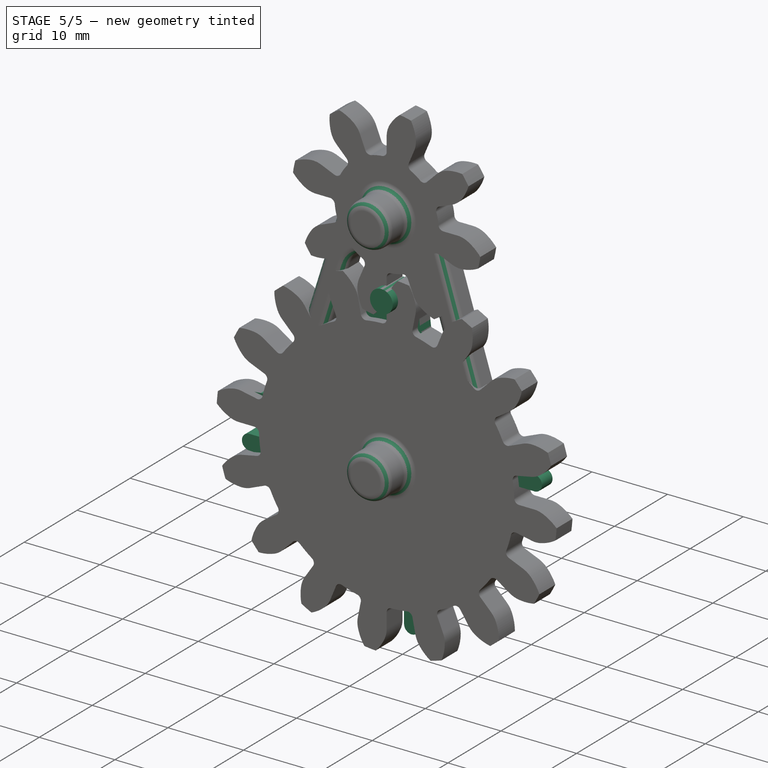
[diagram: stage 5 of 5 — iso view after this stage's code; geometry added in this stage tinted green]
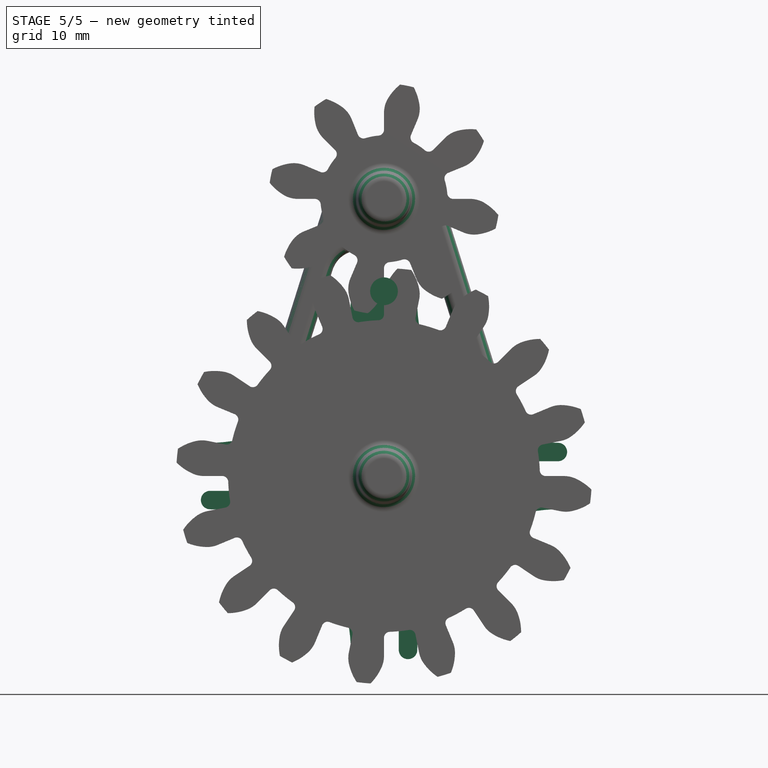
[diagram: stage 5 of 5 — front view after this stage's code; geometry added in this stage tinted green]
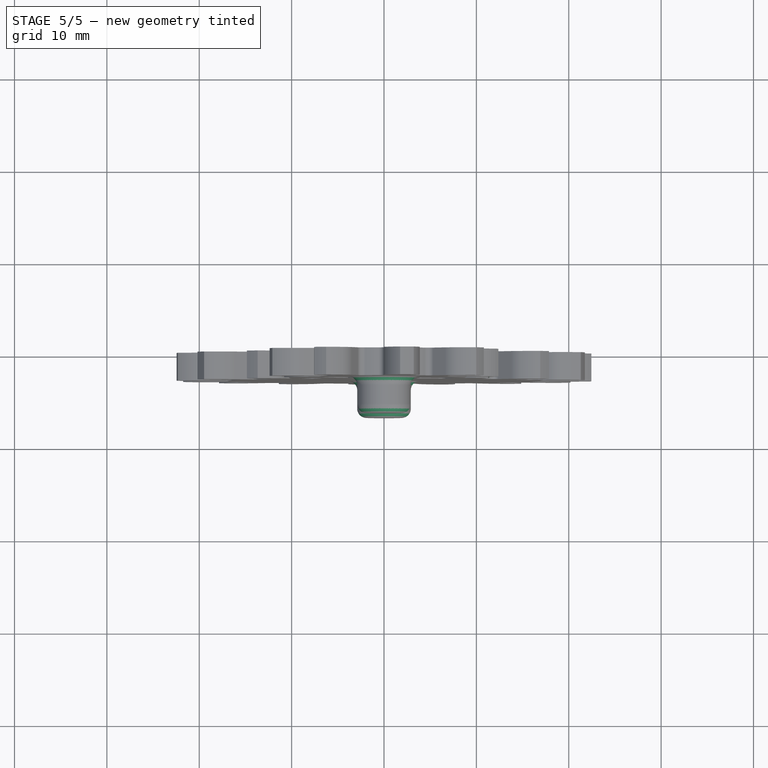
[diagram: stage 5 of 5 — top view after this stage's code; geometry added in this stage tinted green]
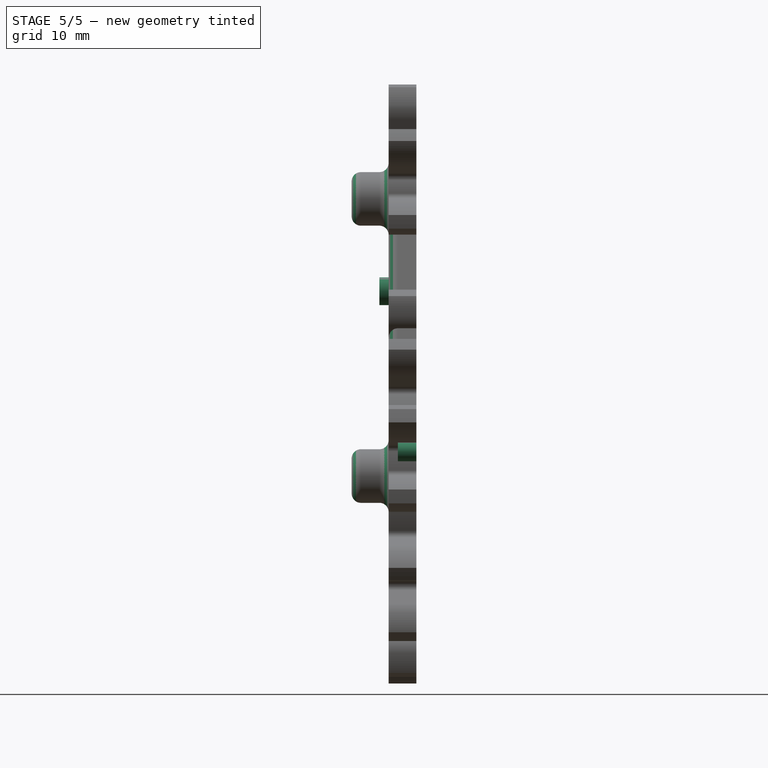
[diagram: stage 5 of 5 — right view after this stage's code; geometry added in this stage tinted green]
FEATURE [Sketcher::SketchObject] Sketch
  ArcFitTolerance = 1e-06
  AttachmentSupport = -> [XZ_Plane]
  FullyConstrained = true
  MakeInternals = false
  MapMode = 5
  Placement = pos=(0,0,0) rot=(1,0,0;1.5708rad)
  sketch-geometry (10):
    g0: Circle [constr] CenterX=0 CenterY=0 CenterZ=0 NormalX=0 NormalY=0 NormalZ=1 AngleXU=0 Radius=20
    g1: Circle [constr] CenterX=0 CenterY=28.284 CenterZ=0 NormalX=0 NormalY=0 NormalZ=1 AngleXU=0 Radius=19.9996
    g2: Circle CenterX=0 CenterY=0 CenterZ=0 NormalX=0 NormalY=0 NormalZ=1 AngleXU=0 Radius=3.2
    g3: ArcOfCircle CenterX=0 CenterY=0 CenterZ=0 NormalX=0 NormalY=0 NormalZ=1 AngleXU=0 Radius=6.2 StartAngle=2.90437 EndAngle=6.5204
    g4: ArcOfCircle CenterX=0 CenterY=20 CenterZ=0 NormalX=0 NormalY=0 NormalZ=1 AngleXU=0 Radius=1.5 StartAngle=0.237219 EndAngle=2.90437
    g5: LineSegment StartX=-6.02637 StartY=1.457 StartZ=0 EndX=-1.45799 EndY=20.3525 EndZ=0
    g6: LineSegment StartX=1.45799 StartY=20.3525 StartZ=0 EndX=6.02637 EndY=1.457 EndZ=0
    g7: LineSegment [constr] StartX=6.02637 StartY=1.457 StartZ=0 EndX=3.11039 EndY=0.752 EndZ=0
    g8: LineSegment [constr] StartX=0 StartY=28.284 StartZ=0 EndX=14.142 EndY=14.1423 EndZ=0
    g9: LineSegment [constr] StartX=0 StartY=0 StartZ=0 EndX=14.142 EndY=14.1423 EndZ=0
  constraints (24):
    c: Coincident(g0,g-1)
    c: PointOnObject(g1,g-2)
    c: Radius(g0) = 20
    c: Coincident(g2,g0)
    c: Diameter(g2) = 6.4
    c: Coincident(g3,g0)
    c: PointOnObject(g4,g-2)
    c: Tangent(g6,g4) = 1.5708
    c: Tangent(g5,g4) = 1.5708
    c: Tangent(g5,g3) = 1.5708
    c: Tangent(g6,g3) = 1.5708
    c: Coincident(g7,g3)
    c: PointOnObject(g7,g2)
    c: Perpendicular(g6,g7)
    c: Distance(g7) = 3
    c: PointOnObject(g4,g0)
    c: Coincident(g8,g1)
    c: PointOnObject(g8,g1)
    c: PointOnObject(g8,g0)
    c: Coincident(g9,g0)
    c: Coincident(g9,g8)
    c: Tangent(g9,g1)
    c: Diameter(g4) = 3
    c: DistanceY(g0,g1) = 28.284
FEATURE [PartDesign::Pad] Pad
  Direction = (0,-1,2e-16)
  Length = 2
  Length2 = 10
  Placement = pos=(0,0,0) rot=(1,0,0;1.5708rad)
  Profile = -> Sketch
  ReferenceAxis = -> Sketch [N_Axis]
  Refine = true
  Suppressed = false
  Type = 0
FEATURE [Sketcher::SketchObject] Sketch001
  ArcFitTolerance = 1e-06
  AttachmentSupport = -> [Pad]
  FullyConstrained = true
  MakeInternals = false
  MapMode = 5
  Placement = pos=(0,-2,0) rot=(1,0,0;1.5708rad)
  sketch-geometry (1):
    g0: Circle CenterX=0 CenterY=20 CenterZ=0 NormalX=0 NormalY=0 NormalZ=1 AngleXU=0 Radius=1.5
  constraints (3):
    c: PointOnObject(g0,g-2)
    c: Diameter(g0) = 3
    c: DistanceY(g-1,g0) = 20
FEATURE [Sketcher::SketchObject] Sketch002
  ArcFitTolerance = 1e-06
  AttachmentSupport = -> [XZ_Plane001]
  FullyConstrained = true
  MakeInternals = false
  MapMode = 5
  Placement = pos=(0,0,0) rot=(1,0,0;1.5708rad)
  sketch-geometry (30):
    g0: Circle [constr] CenterX=0 CenterY=28.284 CenterZ=0 NormalX=0 NormalY=0 NormalZ=1 AngleXU=0 Radius=20
    g1: LineSegment [constr] StartX=0 StartY=0 StartZ=0 EndX=14.142 EndY=14.1417 EndZ=0
    g2: LineSegment [constr] StartX=0 StartY=28.284 StartZ=0 EndX=14.142 EndY=14.1417 EndZ=0
    g3: ArcOfCircle CenterX=-8.284 CenterY=0 CenterZ=0 NormalX=0 NormalY=0 NormalZ=1 AngleXU=0 Radius=1.6 StartAngle=4.71239 EndAngle=7.85398
    g4: ArcOfCircle CenterX=0 CenterY=8.284 CenterZ=0 NormalX=0 NormalY=0 NormalZ=1 AngleXU=0 Radius=1.6 StartAngle=3.14159 EndAngle=6.28319
    g5: ArcOfCircle CenterX=8.284 CenterY=0 CenterZ=0 NormalX=0 NormalY=0 NormalZ=1 AngleXU=0 Radius=1.6 StartAngle=1.5708 EndAngle=4.71239
    g6: ArcOfCircle CenterX=0 CenterY=-8.284 CenterZ=0 NormalX=0 NormalY=0 NormalZ=1 AngleXU=0 Radius=1.6 StartAngle=-9e-16 EndAngle=3.14159
    g7: LineSegment StartX=-8.284 StartY=1.6 StartZ=0 EndX=-18.8209 EndY=1.6 EndZ=0
    g8: LineSegment StartX=-8.284 StartY=-1.6 StartZ=0 EndX=-18.8209 EndY=-1.6 EndZ=0
    g9: LineSegment StartX=-1.6 StartY=8.284 StartZ=0 EndX=-1.6 EndY=18.8209 EndZ=0
    g10: LineSegment StartX=1.6 StartY=8.284 StartZ=0 EndX=1.6 EndY=18.8209 EndZ=0
    g11: LineSegment StartX=-1.6 StartY=-8.284 StartZ=0 EndX=-1.6 EndY=-18.8209 EndZ=0
    g12: LineSegment StartX=1.6 StartY=-8.284 StartZ=0 EndX=1.6 EndY=-18.8209 EndZ=0
    g13: LineSegment StartX=8.284 StartY=1.6 StartZ=0 EndX=18.8209 EndY=1.6 EndZ=0
    g14: LineSegment StartX=8.284 StartY=-1.6 StartZ=0 EndX=18.8209 EndY=-1.6 EndZ=0
    g15: ArcOfCircle CenterX=-18.8209 CenterY=2.6 CenterZ=0 NormalX=0 NormalY=0 NormalZ=1 AngleXU=0 Radius=1 StartAngle=1.5708 EndAngle=4.71239
    g16: ArcOfCircle CenterX=-18.8209 CenterY=-2.6 CenterZ=0 NormalX=0 NormalY=0 NormalZ=1 AngleXU=0 Radius=1 StartAngle=1.5708 EndAngle=4.71239
    g17: ArcOfCircle CenterX=2.6 CenterY=18.8209 CenterZ=0 NormalX=0 NormalY=0 NormalZ=1 AngleXU=0 Radius=1 StartAngle=0 EndAngle=3.14159
    g18: ArcOfCircle CenterX=-2.6 CenterY=18.8209 CenterZ=0 NormalX=0 NormalY=0 NormalZ=1 AngleXU=0 Radius=1 StartAngle=-9e-16 EndAngle=3.14159
    g19: ArcOfCircle CenterX=18.8209 CenterY=2.6 CenterZ=0 NormalX=0 NormalY=0 NormalZ=1 AngleXU=0 Radius=1 StartAngle=4.71239 EndAngle=7.85398
    g20: ArcOfCircle CenterX=18.8209 CenterY=-2.6 CenterZ=0 NormalX=0 NormalY=0 NormalZ=1 AngleXU=0 Radius=1 StartAngle=4.71239 EndAngle=7.85398
    g21: ArcOfCircle CenterX=-2.6 CenterY=-18.8209 CenterZ=0 NormalX=0 NormalY=0 NormalZ=1 AngleXU=0 Radius=1 StartAngle=3.14159 EndAngle=6.28319
    g22: ArcOfCircle CenterX=2.6 CenterY=-18.8209 CenterZ=0 NormalX=0 NormalY=0 NormalZ=1 AngleXU=0 Radius=1 StartAngle=3.14159 EndAngle=6.28319
    g23: LineSegment [constr] StartX=0 StartY=8.284 StartZ=0 EndX=8.284 EndY=0 EndZ=0
    g24: Circle CenterX=0 CenterY=0 CenterZ=0 NormalX=0 NormalY=0 NormalZ=1 AngleXU=0 Radius=3.2
    g25: Circle [constr] CenterX=0 CenterY=0 CenterZ=0 NormalX=0 NormalY=0 NormalZ=1 AngleXU=0 Radius=19.9996
    g26: ArcOfCircle CenterX=18.8209 CenterY=18.8209 CenterZ=0 NormalX=0 NormalY=0 NormalZ=1 AngleXU=0 Radius=15.2209 StartAngle=3.14159 EndAngle=4.71239
    g27: ArcOfCircle CenterX=-18.8209 CenterY=18.8209 CenterZ=0 NormalX=0 NormalY=0 NormalZ=1 AngleXU=0 Radius=15.2209 StartAngle=4.71239 EndAngle=6.28319
    g28: ArcOfCircle CenterX=18.8209 CenterY=-18.8209 CenterZ=0 NormalX=0 NormalY=0 NormalZ=1 AngleXU=0 Radius=15.2209 StartAngle=1.5708 EndAngle=3.14159
    g29: ArcOfCircle CenterX=-18.8209 CenterY=-18.8209 CenterZ=0 NormalX=0 NormalY=0 NormalZ=1 AngleXU=0 Radius=15.2209 StartAngle=0 EndAngle=1.5708
  constraints (76):
    c: PointOnObject(g0,g-2)
    c: PointOnObject(g1,g0)
    c: Coincident(g2,g0)
    c: Coincident(g2,g1)
    c: Perpendicular(g1,g2)
    c: Radius(g0) = 20
    c: PointOnObject(g3,g-1)
    c: PointOnObject(g4,g-2)
    c: Equal(g3,g4)
    c: Equal(g4,g5)
    c: Equal(g5,g6)
    c: Horizontal(g7)
    c: Horizontal(g8)
    c: Vertical(g9)
    c: Vertical(g10)
    c: Vertical(g11)
    c: Vertical(g12)
    c: Horizontal(g14)
    c: Horizontal(g13)
    c: Tangent(g9,g4) = 1.5708
    c: Tangent(g10,g4) = -1.5708
    c: Tangent(g13,g5) = 1.5708
    c: Tangent(g14,g5) = -1.5708
    c: Tangent(g11,g6) = -1.5708
    c: Tangent(g12,g6) = 1.5708
    c: Tangent(g8,g3) = 1.5708
    c: Tangent(g7,g3) = -1.5708
    c: Tangent(g16,g8) = -1.5708
    c: Tangent(g15,g7) = 1.5708
    c: Tangent(g20,g14) = 1.5708
    c: Tangent(g19,g13) = -1.5708
    c: Diameter(g3) = 3.2
    c: Equal(g15,g16)
    c: Equal(g16,g21)
    c: Equal(g21,g22)
    c: Equal(g22,g20)
    c: Equal(g20,g19)
    c: Equal(g19,g17)
    c: Equal(g17,g18)
    c: Tangent(g17,g10) = 1.5708
    c: Tangent(g18,g9) = -1.5708
    c: Tangent(g21,g11) = 1.5708
    c: Tangent(g22,g12) = -1.5708
    c: Diameter(g21) = 2
    c: PointOnObject(g4,g0)
    c: Symmetric(g4,g6,g-1)
    c: Symmetric(g5,g3,g-2)
    c: Coincident(g23,g4)
    c: Coincident(g23,g5)
    c: Angle(g-2,g23) = 0.785398
    c: Diameter(g24) = 6.4
    c: Coincident(g25,g24)
    c: PointOnObject(g1,g25)
    c: Coincident(g24,g-1)
    c: Coincident(g1,g24)
    c: DistanceY(g1,g0) = 28.284
    c: Tangent(g19,g25)
    c: Tangent(g20,g25)
    c: Tangent(g22,g25)
    c: Tangent(g21,g25)
    c: Tangent(g16,g25)
    c: Tangent(g15,g25)
    c: Tangent(g18,g25)
    c: Tangent(g17,g25)
    c: Tangent(g26,g17) = 1.5708
    c: Tangent(g26,g19) = 1.5708
    c: Vertical(g19,g19)
    c: Vertical(g15,g15)
    c: Tangent(g27,g18) = 1.5708
    c: Tangent(g27,g15) = 1.5708
    c: Tangent(g28,g22) = 1.5708
    c: Tangent(g28,g20) = 1.5708
    c: Vertical(g20,g20)
    c: Tangent(g29,g16) = 1.5708
    c: Tangent(g29,g21) = 1.5708
    c: Vertical(g16,g16)
FEATURE [PartDesign::Pad] Pad002
  Direction = (0,-1,2e-16)
  Length = 2
  Length2 = 10
  Placement = pos=(0,0,0) rot=(1,0,0;1.5708rad)
  Profile = -> Sketch002
  ReferenceAxis = -> Sketch002 [N_Axis]
  Refine = true
  Suppressed = false
  Type = 0
FEATURE [PartDesign::Body] Body001  label="Body"
  AllowCompound = false
  Group = -> [Sketch002,Pad002]
  Origin = -> Origin001
  Placement = pos=(0,0,28.284) rot=(0,0,1;0rad)
  Tip = -> Pad002
FEATURE [PartDesign::Pad] Pad003
  BaseFeature = -> Pad
  Direction = (0,-1,2e-16)
  Length = 2
  Length2 = 10
  Placement = pos=(0,0,0) rot=(1,0,0;1.5708rad)
  Profile = -> Sketch001
  ReferenceAxis = -> Sketch001 [N_Axis]
  Refine = true
  Suppressed = false
  Type = 0
FEATURE [PartDesign::Fillet] Fillet
  Base = -> Pad007 [Face5,Face22,Face21]
  BaseFeature = -> Pad007
  Placement = pos=(0,0,0) rot=(1,0,0;1.5708rad)
  Radius = 1
  Refine = true
  SupportTransform = false
  Suppressed = false
  UseAllEdges = false
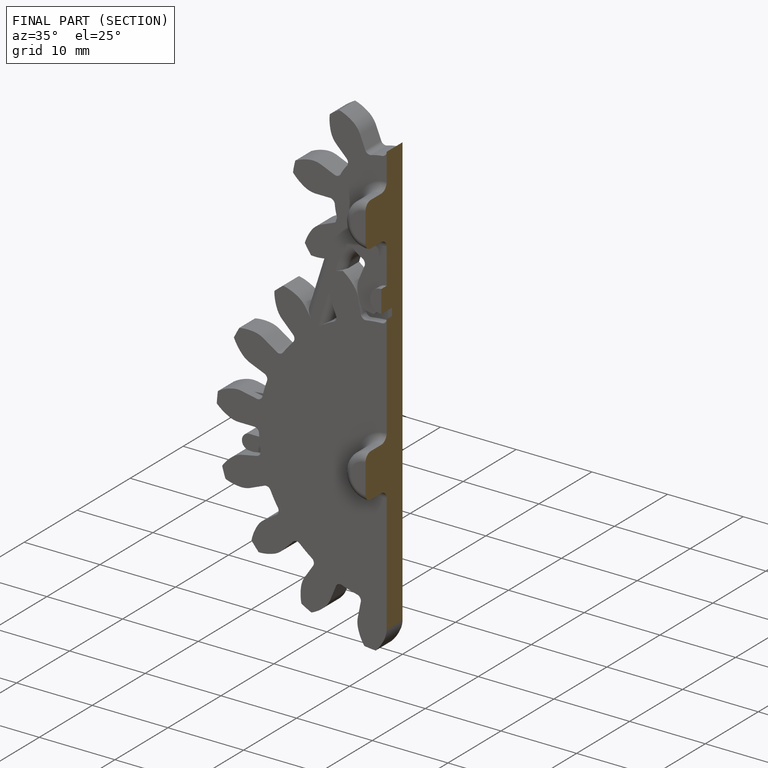
[diagram: finished part — half-section view (interior)]
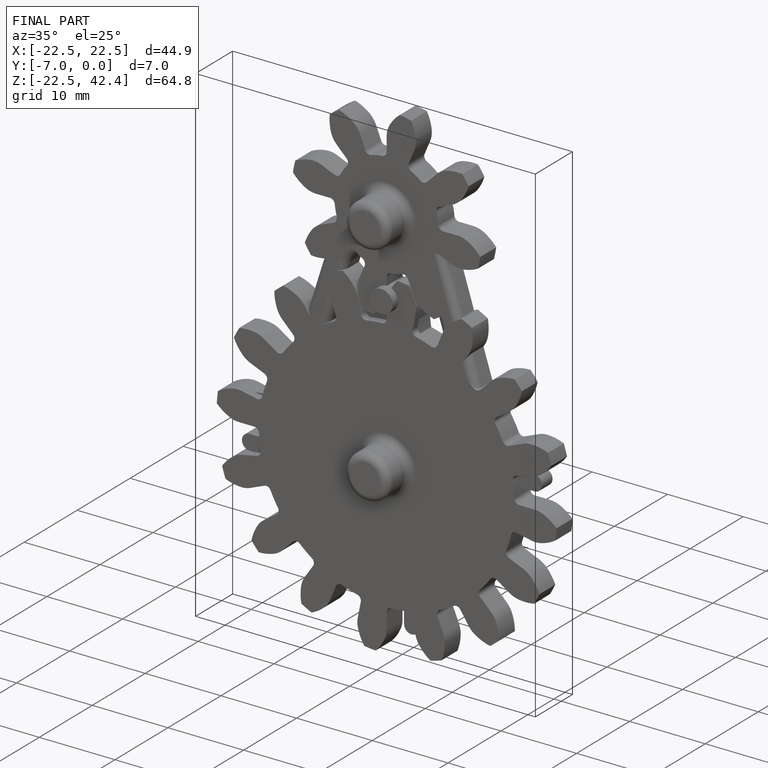
[diagram: finished part — iso view with bounding-box wireframe]
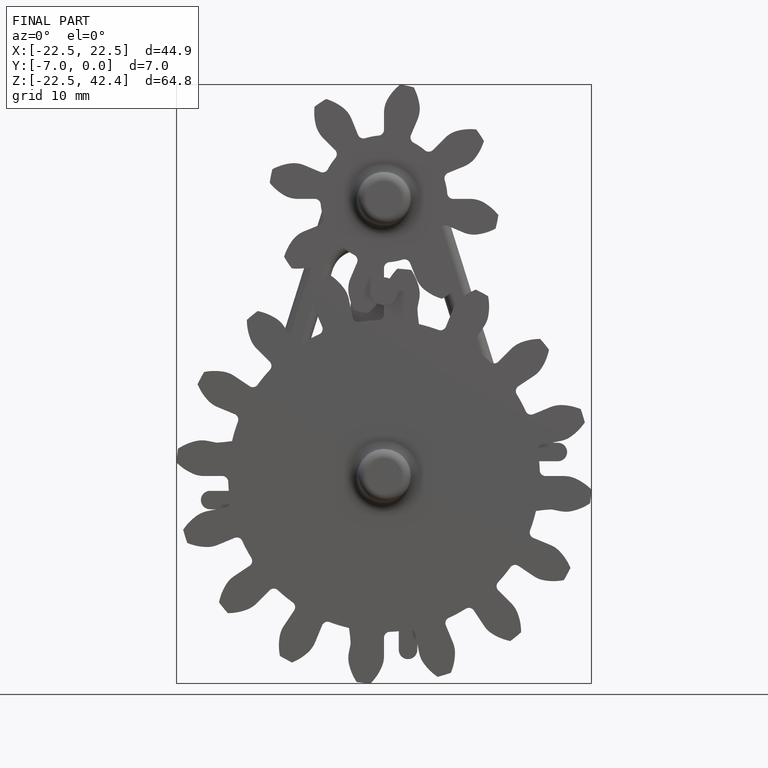
[diagram: finished part — front view with bounding-box wireframe]
